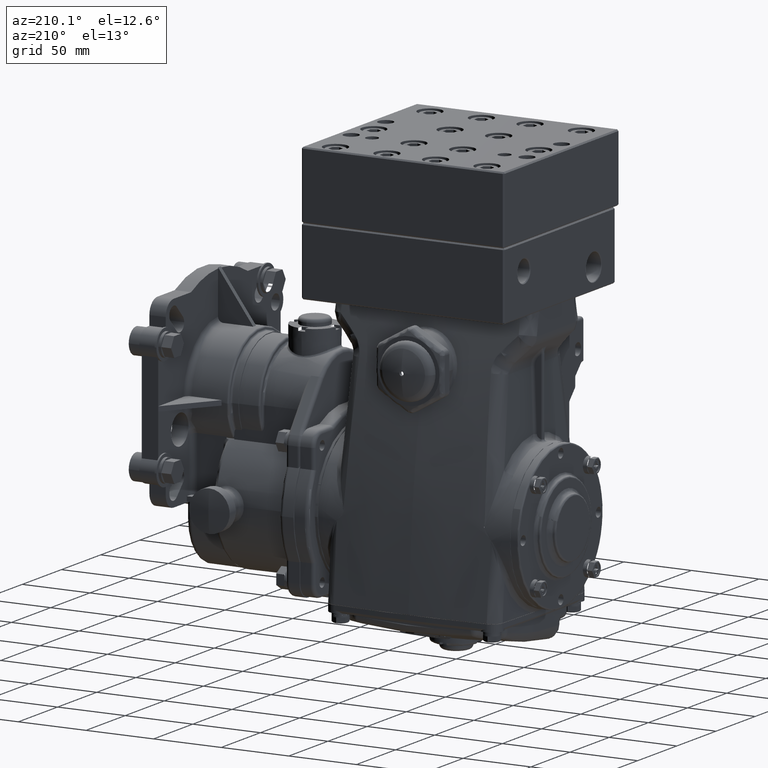
[diagram: clean part render]
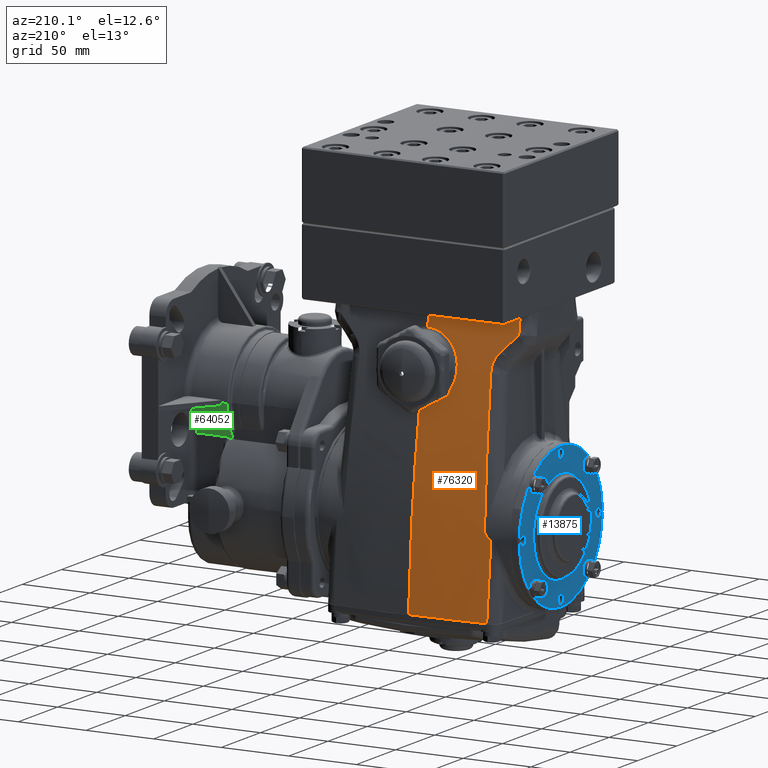
[diagram: same view with three faces highlighted in distinct colors, each labeled with its STEP entity id]
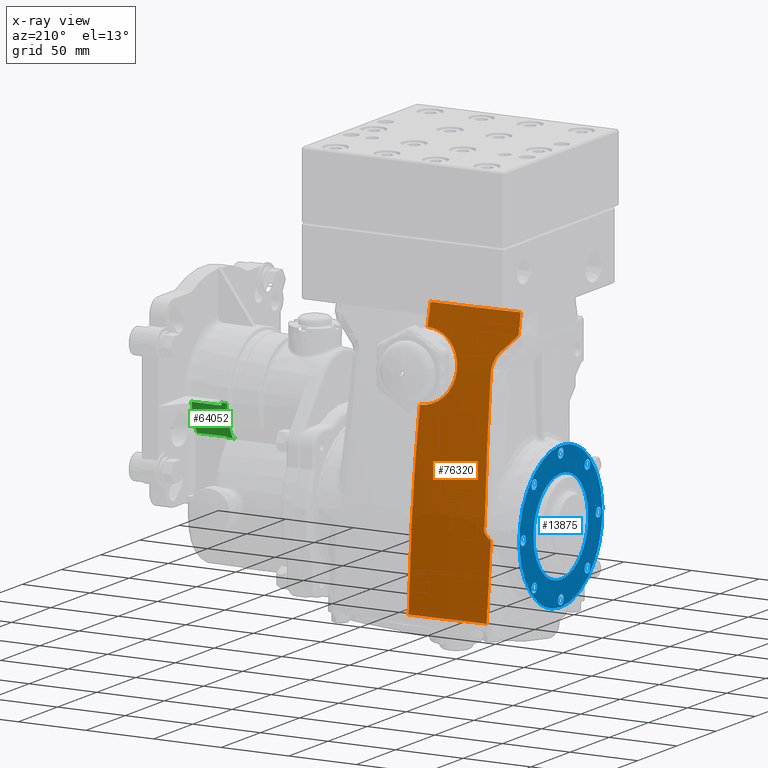
[diagram: x-ray of the same camera — body ghosted, the three highlighted faces saturated]
A machine part, auxiliary view with three faces highlighted in distinct colors.
The next image is the same camera in x-ray (body ghosted, the three faces saturated) — at least one of them is partly hidden behind the body in this view.
Their STEP definitions:

[orange] entity #76320 — the highlighted face is a freeform B-spline surface patch.
#261 = CARTESIAN_POINT ( 'NONE',  ( -1.946748905238079086, 1.528379903095722359, 4.378080018571826493 ) ) ;
#338 = CARTESIAN_POINT ( 'NONE',  ( 1.789341252083276768, 1.261249471572284842, 5.708661417322832499 ) ) ;
#791 = CARTESIAN_POINT ( 'NONE',  ( 2.686370785910835668, 2.084068835673689168, 0.4897784465330284331 ) ) ;
#1165 = CARTESIAN_POINT ( 'NONE',  ( -2.063488888649752440, 1.476050141854796216, 4.604872648964009052 ) ) ;
#1250 = CARTESIAN_POINT ( 'NONE',  ( 2.862114397419967649, 1.201536995417321174, 5.708661417322835163 ) ) ;
#1354 = B_SPLINE_CURVE_WITH_KNOTS ( 'NONE', 3,
 ( #4500, #25053, #67174, #54796, #53004, #68060 ),
 .UNSPECIFIED., .F., .F.,
 ( 4, 2, 4 ),
 ( 2.860979249076398407E-17, 0.0003987412940839052140, 0.0007974825881677818050 ),
 .UNSPECIFIED. ) ;
#1531 = CARTESIAN_POINT ( 'NONE',  ( -1.856596089375251557, 2.347836400576190474, -2.152851640792331267 ) ) ;
#2363 = CARTESIAN_POINT ( 'NONE',  ( -2.107178115646288763, 2.142550459315986089, 0.07382979369071028530 ) ) ;
#2602 = CARTESIAN_POINT ( 'NONE',  ( 2.913385826771654141, 2.265344068576858216, -2.165354330708661568 ) ) ;
#3323 = CARTESIAN_POINT ( 'NONE',  ( 4.913136071072523174E-16, 1.836057301759951743, 3.153322082173252383 ) ) ;
#3571 = CARTESIAN_POINT ( 'NONE',  ( -2.580420361868525525, 1.219814423293576366, 5.708661417322829834 ) ) ;
#3930 = ORIENTED_EDGE ( 'NONE', *, *, #60426, .F. ) ;
#4049 = CARTESIAN_POINT ( 'NONE',  ( -1.424768798695146943, 1.872199753906897080, 3.127925920230782530 ) ) ;
#4493 = CARTESIAN_POINT ( 'NONE',  ( -2.706392384829025666, 1.723957603235178659, 3.127925920230774093 ) ) ;
#4500 = CARTESIAN_POINT ( 'NONE',  ( -2.586362804630043755, 1.329823753665074770, 5.151270064738946886 ) ) ;
#4932 = CARTESIAN_POINT ( 'NONE',  ( -2.450684691601683340, 2.118214908375344319, 0.4897784465330273784 ) ) ;
#4938 = ORIENTED_EDGE ( 'NONE', *, *, #64940, .F. ) ;
#5289 = CARTESIAN_POINT ( 'NONE',  ( -0.4888797921504499655, 1.471286706367559649, 4.958214325787498211 ) ) ;
#5394 = CARTESIAN_POINT ( 'NONE',  ( -2.085131295870260804, 1.806265684984544873, 3.127925920230786083 ) ) ;
#5573 = CARTESIAN_POINT ( 'NONE',  ( -2.049718606573461166, 2.125365367588376575, 0.2902049147125475015 ) ) ;
#5842 = ORIENTED_EDGE ( 'NONE', *, *, #17566, .F. ) ;
#5848 = CARTESIAN_POINT ( 'NONE',  ( -1.741295670112191551, 1.263397575016612429, 5.708661417322822729 ) ) ;
#6195 = CARTESIAN_POINT ( 'NONE',  ( -0.9424672581809910854, 1.677446185038370174, 3.903529103138577483 ) ) ;
#6289 = CARTESIAN_POINT ( 'NONE',  ( 2.369125755900576280, 1.232386614232151567, 5.708661417322828946 ) ) ;
#6297 = CARTESIAN_POINT ( 'NONE',  ( -2.279618857958575884, 1.416278901517129540, 4.829451229673164647 ) ) ;
#6451 = CARTESIAN_POINT ( 'NONE',  ( -0.8019535934125048282, 1.292120820694525829, 5.708661417322820952 ) ) ;
#6526 = B_SPLINE_CURVE_WITH_KNOTS ( 'NONE', 3,
 ( #47432, #60677, #88576, #25871 ),
 .UNSPECIFIED., .F., .F.,
 ( 4, 4 ),
 ( 0.001088878662660275332, 0.05488596565795428317 ),
 .UNSPECIFIED. ) ;
#6650 = CARTESIAN_POINT ( 'NONE',  ( -0.8248358664637551740, 1.535056502061034944, 4.629367722570785659 ) ) ;
#6664 = CARTESIAN_POINT ( 'NONE',  ( -2.113476934372326976, 1.460827687103822603, 4.664159022983963787 ) ) ;
#6751 = CARTESIAN_POINT ( 'NONE',  ( 2.546430131488103932, 1.222062046991425621, 5.708661417322830722 ) ) ;
#7212 = CARTESIAN_POINT ( 'NONE',  ( 0.4731394191495172374, 2.398237061164405937, -2.165354330708661568 ) ) ;
#7668 = CARTESIAN_POINT ( 'NONE',  ( 2.855287436206074059, 1.701152819370444380, 3.127925920230767431 ) ) ;
#8051 = EDGE_LOOP ( 'NONE', ( #61357, #62368, #56733, #9690, #3930, #37534, #80258, #4938, #76538, #87794, #46072, #5842, #76854 ) ) ;
#8785 = CARTESIAN_POINT ( 'NONE',  ( -2.153604286739063234, 2.142677141121250184, 0.02739613417404300130 ) ) ;
#9315 = B_SPLINE_SURFACE_WITH_KNOTS ( 'NONE', 3, 3, ( 
 ( #87317, #66718, #60743, #74926 ),
 ( #46142, #31931, #45687, #80871 ),
 ( #24600, #39698, #4493, #61201 ),
 ( #81781, #4932, #40156, #74040 ),
 ( #75382, #25488, #19093, #10894 ),
 ( #59417, #17749, #5394, #11345 ),
 ( #33286, #38797, #89100, #32375 ),
 ( #46598, #74482, #60301, #5848 ),
 ( #26390, #54339, #4049, #88188 ),
 ( #19528, #40612, #11798, #68504 ),
 ( #59864, #87762, #25046, #13571 ),
 ( #14948, #70792, #33739, #76743 ),
 ( #34640, #41497, #28204, #26834 ),
 ( #27300, #27755, #14036, #75831 ),
 ( #77203, #42880, #62557, #89538 ),
 ( #55241, #84067, #54790, #56607 ),
 ( #7212, #13134, #62096, #84526 ),
 ( #35546, #49323, #69887, #48405 ),
 ( #76279, #35101, #20887, #48847 ),
 ( #82690, #34177, #41956, #89996 ),
 ( #61646, #63015, #83144, #338 ),
 ( #90450, #49779, #21811, #14501 ),
 ( #63465, #19981, #77650, #47959 ),
 ( #41050, #20431, #42426, #6289 ),
 ( #68959, #69416, #55693, #6751 ),
 ( #83605, #791, #56143, #28668 ),
 ( #21356, #70343, #7668, #1250 ),
 ( #2602, #16308, #79421, #57509 ) ),
 .UNSPECIFIED., .F., .F., .F.,
 ( 4, 1, 1, 1, 1, 1, 1, 1, 1, 1, 1, 3, 1, 1, 1, 1, 1, 1, 1, 1, 1, 1, 1, 4 ),
 ( 4, 4 ),
 ( 0.6820721574386665598, 0.6959246563835279620, 0.7035427212275893183, 0.7193976784518302248, 0.7310405802590583813, 0.7359332488469740863, 0.7508238822397268475, 0.7638475608825302521, 0.7796596398469348710, 0.7995163485322880348, 0.8173264764016470174, 0.8410360787193331689, 0.8577107850873244566, 0.8637457220820379256, 0.8805901526646464639, 0.9065920388027239873, 0.9224714650153007511, 0.9387315542144891722, 0.9421836685404010314, 0.9588536976265762402, 0.9664841599499356395, 0.9748837514135768600, 0.9901004416486960391, 1.000000000000000000 ),
 ( 0.000000000000000000, 1.000000000000000000 ),
 .UNSPECIFIED. ) ;
#9464 = CARTESIAN_POINT ( 'NONE',  ( 4.913136071072523174E-16, 1.836057301759951743, 3.153322082173252383 ) ) ;
#9648 = B_SPLINE_CURVE_WITH_KNOTS ( 'NONE', 3,
 ( #48319, #6664, #29039, #1165, #42335, #70706, #90366, #50136, #261, #78004, #35460, #64299, #77561, #48760 ),
 .UNSPECIFIED., .F., .F.,
 ( 4, 2, 2, 2, 2, 2, 4 ),
 ( 0.000000000000000000, 0.002006917460411370042, 0.004013834920822740085, 0.008027669841645474966, 0.01003458730205684588, 0.01204150476246821505, 0.01605533968329094993 ),
 .UNSPECIFIED. ) ;
#9690 = ORIENTED_EDGE ( 'NONE', *, *, #17899, .F. ) ;
#10551 = CARTESIAN_POINT ( 'NONE',  ( -2.040459019290786102, 2.135564256478422518, 0.2034737644382936528 ) ) ;
#10894 = CARTESIAN_POINT ( 'NONE',  ( -2.324091733874594556, 1.235065584125860205, 5.708661417322837828 ) ) ;
#11242 = CARTESIAN_POINT ( 'NONE',  ( -0.2689366647110956188, 1.827531859230574263, 3.191424109076885784 ) ) ;
#11345 = CARTESIAN_POINT ( 'NONE',  ( -2.132997294791504572, 1.245100427256950137, 5.708661417322847598 ) ) ;
#11515 = CARTESIAN_POINT ( 'NONE',  ( -2.053018764334045176, 2.123601462032806531, 0.3034926010330921686 ) ) ;
#11692 = CARTESIAN_POINT ( 'NONE',  ( -0.3151986056433642713, 1.455377961310617696, 5.039591650425437663 ) ) ;
#11798 = CARTESIAN_POINT ( 'NONE',  ( -1.120923444174019235, 1.894876309026148453, 3.127925920230774093 ) ) ;
#11803 = CARTESIAN_POINT ( 'NONE',  ( -2.427290454833202382, 1.376123305585299272, 4.976396351799645679 ) ) ;
#12118 = CARTESIAN_POINT ( 'NONE',  ( -0.9458950846975648918, 1.674355009619318269, 3.918891003596450151 ) ) ;
#12399 = CARTESIAN_POINT ( 'NONE',  ( -2.053194142686559864, 2.123507996596452063, 0.3041950259637326570 ) ) ;
#12581 = CARTESIAN_POINT ( 'NONE',  ( -0.08054166425364030213, 1.446093476583459436, 5.086882738810285964 ) ) ;
#13134 = CARTESIAN_POINT ( 'NONE',  ( 0.4802293617885408095, 2.293642939336617115, 0.4897784465330360937 ) ) ;
#13571 = CARTESIAN_POINT ( 'NONE',  ( -0.8019535934125048282, 1.292120820694525829, 5.708661417322820952 ) ) ;
#14036 = CARTESIAN_POINT ( 'NONE',  ( 2.319896085376018283E-17, 1.931427949591510762, 3.127925920230771872 ) ) ;
#14501 = CARTESIAN_POINT ( 'NONE',  ( 2.012704400865588106, 1.251118121441604725, 5.708661417322830722 ) ) ;
#14664 = CARTESIAN_POINT ( 'NONE',  ( -2.580420361868525525, 1.219814423293576366, 5.708661417322829834 ) ) ;
#14948 = CARTESIAN_POINT ( 'NONE',  ( -0.3931574066697886560, 2.399831511276485863, -2.165354330708661568 ) ) ;
#14976 = EDGE_CURVE ( 'NONE', #22379, #43972, #52198, .T. ) ;
#15176 = B_SPLINE_CURVE_WITH_KNOTS ( 'NONE', 3,
 ( #9464, #32277, #66163, #60199, #52899, #37373, #11242, #65286, #23622, #51553, #79436, #16755, #44690, #30934, #58860, #24063, #69318, #18543, #40046, #34080, #25834, #83045, #81219, #60643, #54689, #40949, #6195, #12118, #53786, #39605, #46949, #75272, #46493, #33636, #33181, #55141, #41397, #47857, #61550, #61997, #67951, #6650, #88542, #26285, #82587, #89445, #53336, #74381, #26733, #5289, #67502, #68862, #11692, #19878, #61098, #89000, #12581, #68409, #74832, #90350, #20337, #81675, #54240 ),
 .UNSPECIFIED., .F., .F.,
 ( 4, 2, 2, 2, 2, 2, 2, 2, 1, 2, 2, 2, 2, 2, 2, 2, 2, 2, 2, 2, 2, 2, 2, 2, 2, 2, 2, 2, 2, 2, 2, 4 ),
 ( 2.730194121708042440E-17, 0.004871676645388527474, 0.006089595806735652837, 0.007307514968082777333, 0.009743353290777015049, 0.01461502993616547660, 0.01583294909751258722, 0.01705086825885969784, 0.01948670658155391561, 0.02192254490424812990, 0.02435838322694234767, 0.02923005987233076933, 0.03166589819502496628, 0.03288381735637205955, 0.03410173651771915282, 0.03897341316310749815, 0.04019133232445456366, 0.04140925148580162224, 0.04384508980849572551, 0.04871676645388392513, 0.05115260477657801452, 0.05358844309927211086, 0.05602428142196620026, 0.05846011974466029659, 0.06333179639004848926, 0.06576763471274262030, 0.06820347303543673745, 0.07307514968082494400, 0.07551098800351904727, 0.07672890716486609197, 0.07733786674553962126, 0.07794682632621315055 ),
 .UNSPECIFIED. ) ;
#15625 = CARTESIAN_POINT ( 'NONE',  ( -2.077214970515645298, 2.141491778610241425, 0.1126631891245921807 ) ) ;
#15671 = CARTESIAN_POINT ( 'NONE',  ( -2.586362804630043755, 1.329823753665074770, 5.151270064738946886 ) ) ;
#16308 = CARTESIAN_POINT ( 'NONE',  ( 2.913385628152182161, 2.048762232609131040, 0.4897784465330273784 ) ) ;
#16755 = CARTESIAN_POINT ( 'NONE',  ( -0.5548157912006949077, 1.797392117569904579, 3.328526122958149536 ) ) ;
#17566 = EDGE_CURVE ( 'NONE', #43972, #31507, #65931, .T. ) ;
#17749 = CARTESIAN_POINT ( 'NONE',  ( -2.037265628463433398, 2.172062645620683519, 0.4897784465330372039 ) ) ;
#17899 = EDGE_CURVE ( 'NONE', #42642, #68042, #55994, .T. ) ;
#18543 = CARTESIAN_POINT ( 'NONE',  ( -0.7307716510373689633, 1.763420215501402044, 3.486847099895348912 ) ) ;
#19093 = CARTESIAN_POINT ( 'NONE',  ( -2.279253307875169998, 1.782954428840550332, 3.127925920230779422 ) ) ;
#19094 = CARTESIAN_POINT ( 'NONE',  ( 3.450959980213676461E-17, 1.299212598425197429, 5.708661417322835163 ) ) ;
#19102 = CARTESIAN_POINT ( 'NONE',  ( -2.244154975526539531, 2.140548279587432656, -0.04263853052005076028 ) ) ;
#19528 = CARTESIAN_POINT ( 'NONE',  ( -1.062078202322146669, 2.384053432892066837, -2.165354330708661568 ) ) ;
#19878 = CARTESIAN_POINT ( 'NONE',  ( -0.2544585553639734377, 1.451715161675748433, 5.058253401313940856 ) ) ;
#19981 = CARTESIAN_POINT ( 'NONE',  ( 2.083726086542775580, 2.166614530041778952, 0.4897784465330300985 ) ) ;
#20174 = CARTESIAN_POINT ( 'NONE',  ( -1.274984242628392523E-15, 1.445461229294053629, 5.090103064882366191 ) ) ;
#20337 = CARTESIAN_POINT ( 'NONE',  ( -0.01614265106011293638, 1.445481042056540266, 5.090002092305165426 ) ) ;
#20431 = CARTESIAN_POINT ( 'NONE',  ( 2.283695148368128258, 2.140796000541696831, 0.4897784465330257131 ) ) ;
#20607 = CARTESIAN_POINT ( 'NONE',  ( -2.975520256783599425E-07, 1.299212598425199872, 5.708661417322837828 ) ) ;
#20887 = CARTESIAN_POINT ( 'NONE',  ( 1.161614335099249162, 1.892574789840504090, 3.127925920230731460 ) ) ;
#21356 = CARTESIAN_POINT ( 'NONE',  ( 2.841633460699813707, 2.272069094341538253, -2.165354330708661568 ) ) ;
#21713 = CARTESIAN_POINT ( 'NONE',  ( -2.131860052545362816, 1.455898494205196236, 4.682448122466263740 ) ) ;
#21811 = CARTESIAN_POINT ( 'NONE',  ( 1.964095400574084938, 1.820132787096657490, 3.127925920230765211 ) ) ;
#22075 = B_SPLINE_CURVE_WITH_KNOTS ( 'NONE', 3,
 ( #46604, #11803, #6297, #67611 ),
 .UNSPECIFIED., .F., .F.,
 ( 4, 4 ),
 ( 0.000000000000000000, 0.01616665010958682341 ),
 .UNSPECIFIED. ) ;
#22095 = CARTESIAN_POINT ( 'NONE',  ( -1.485659127593189188, 2.367827536078678907, -2.152937399985699773 ) ) ;
#22379 = VERTEX_POINT ( 'NONE', #47014 ) ;
#22420 = CARTESIAN_POINT ( 'NONE',  ( -2.132997294791504572, 1.245100427256950137, 5.708661417322847598 ) ) ;
#22949 = VERTEX_POINT ( 'NONE', #25750 ) ;
#23622 = CARTESIAN_POINT ( 'NONE',  ( -0.3449787976630956932, 1.821950353961406366, 3.216540131001417890 ) ) ;
#24063 = CARTESIAN_POINT ( 'NONE',  ( -0.6422591814072775573, 1.782550782372620102, 3.397208525460236661 ) ) ;
#24600 = CARTESIAN_POINT ( 'NONE',  ( -2.663295530942336509, 2.288034568519320633, -2.165354330708661568 ) ) ;
#25046 = CARTESIAN_POINT ( 'NONE',  ( -0.7853088048963535739, 1.913828282296075267, 3.127925920230765211 ) ) ;
#25047 = CARTESIAN_POINT ( 'NONE',  ( -1.274984242628392523E-15, 1.445461229294053629, 5.090103064882366191 ) ) ;
#25053 = CARTESIAN_POINT ( 'NONE',  ( -2.586414031944188618, 1.330825853974931805, 5.146055892413254007 ) ) ;
#25092 = CARTESIAN_POINT ( 'NONE',  ( -3.553331779381568324E-16, 2.401107312964255058, -2.153091527327260835 ) ) ;
#25488 = CARTESIAN_POINT ( 'NONE',  ( -2.234415192802543526, 2.147607685230850105, 0.4897784465330339287 ) ) ;
#25750 = CARTESIAN_POINT ( 'NONE',  ( -2.580420361868525525, 1.219814423293576366, 5.708661417322829834 ) ) ;
#25834 = CARTESIAN_POINT ( 'NONE',  ( -0.8416776436527462213, 1.731100539559013107, 3.640799853198356750 ) ) ;
#25871 = CARTESIAN_POINT ( 'NONE',  ( -2.227242516835840735, 2.321209563805544995, -2.152759186897168053 ) ) ;
#26285 = CARTESIAN_POINT ( 'NONE',  ( -0.7716760308857145700, 1.520005616499535250, 4.707190689330423616 ) ) ;
#26390 = CARTESIAN_POINT ( 'NONE',  ( -1.345329668388619115, 2.372960332906649317, -2.165354330708661568 ) ) ;
#26556 = CARTESIAN_POINT ( 'NONE',  ( -2.047901024090823530, 2.126340813064907742, 0.2828387324246880996 ) ) ;
#26733 = CARTESIAN_POINT ( 'NONE',  ( -0.5160278655444371365, 1.474502422586200012, 4.941722194200439233 ) ) ;
#26834 = CARTESIAN_POINT ( 'NONE',  ( -0.1449627675236095370, 1.299212598425194765, 5.708661417322837828 ) ) ;
#27300 = CARTESIAN_POINT ( 'NONE',  ( 7.936972221735040067E-07, 2.401574803149599369, -2.165354330708661568 ) ) ;
#27462 = CARTESIAN_POINT ( 'NONE',  ( 3.450959980213676461E-17, 1.299212598425197429, 5.708661417322835163 ) ) ;
#27755 = CARTESIAN_POINT ( 'NONE',  ( 1.163670133464663677E-17, 2.300768595909193692, 0.4897784465330312087 ) ) ;
#28204 = CARTESIAN_POINT ( 'NONE',  ( -0.1449928827331220249, 1.931427949591510762, 3.127925920230771872 ) ) ;
#28668 = CARTESIAN_POINT ( 'NONE',  ( 2.729947521028391666, 1.210496205736397046, 5.708661417322837828 ) ) ;
#29039 = CARTESIAN_POINT ( 'NONE',  ( -2.096129776760800034, 1.465843969454385887, 4.644982890269668374 ) ) ;
#30244 = CARTESIAN_POINT ( 'NONE',  ( -2.244154975526539531, 2.140548279587432656, -0.04263853052005076028 ) ) ;
#30934 = CARTESIAN_POINT ( 'NONE',  ( -0.5933181033504502100, 1.791224152829905769, 3.356988519879162247 ) ) ;
#31507 = VERTEX_POINT ( 'NONE', #37312 ) ;
#31666 = CARTESIAN_POINT ( 'NONE',  ( 3.450959980213676461E-17, 1.299212598425197429, 5.708661417322835163 ) ) ;
#31931 = CARTESIAN_POINT ( 'NONE',  ( -2.822533585408712575, 2.063108027997046179, 0.4897784465330322634 ) ) ;
#32277 = CARTESIAN_POINT ( 'NONE',  ( -0.06459929520378429602, 1.836057302116698819, 3.153322082174859542 ) ) ;
#32375 = CARTESIAN_POINT ( 'NONE',  ( -1.943646624093668951, 1.254362676313996783, 5.708661417322836940 ) ) ;
#32376 = CARTESIAN_POINT ( 'NONE',  ( -1.384850827037492099E-08, 1.349635227852899577, 5.502833657239617260 ) ) ;
#33181 = CARTESIAN_POINT ( 'NONE',  ( -0.9599596636209278833, 1.609408501972310779, 4.246538372213343848 ) ) ;
#33286 = CARTESIAN_POINT ( 'NONE',  ( -1.798349607840920461, 2.349958156103974627, -2.165354330708661568 ) ) ;
#33636 = CARTESIAN_POINT ( 'NONE',  ( -0.9644831214159411692, 1.618667759299428743, 4.199342229287560180 ) ) ;
#33739 = CARTESIAN_POINT ( 'NONE',  ( -0.4014957656440674150, 1.927885586440226895, 3.127925920230758550 ) ) ;
#34080 = CARTESIAN_POINT ( 'NONE',  ( -0.7895195932548942919, 1.747619812788680616, 3.561772888436794737 ) ) ;
#34177 = CARTESIAN_POINT ( 'NONE',  ( 1.480950586178896522, 2.231805334558643494, 0.4897784465330393688 ) ) ;
#34640 = CARTESIAN_POINT ( 'NONE',  ( -0.1450532115828242763, 2.401574803149599369, -2.165354330708661568 ) ) ;
#35101 = CARTESIAN_POINT ( 'NONE',  ( 1.130488594888032106, 2.260970933480409784, 0.4897784465330104475 ) ) ;
#35460 = CARTESIAN_POINT ( 'NONE',  ( -1.927611122228681584, 1.544016712790777790, 4.303500443620481342 ) ) ;
#35546 = CARTESIAN_POINT ( 'NONE',  ( 0.7593239362273205284, 2.393134938270125467, -2.165354330708661568 ) ) ;
#35956 = EDGE_CURVE ( 'NONE', #88088, #43592, #49369, .T. ) ;
#36676 = CARTESIAN_POINT ( 'NONE',  ( -2.190893994370604059, 2.142160377084881606, -0.004468358595178296803 ) ) ;
#37312 = CARTESIAN_POINT ( 'NONE',  ( 4.913136071072523174E-16, 1.836057301759951743, 3.153322082173252383 ) ) ;
#37373 = CARTESIAN_POINT ( 'NONE',  ( -0.2533926817482556326, 1.828505556673673649, 3.187054628844162352 ) ) ;
#37534 = ORIENTED_EDGE ( 'NONE', *, *, #89852, .F. ) ;
#37908 = EDGE_CURVE ( 'NONE', #67301, #22379, #6526, .T. ) ;
#38439 = EDGE_CURVE ( 'NONE', #68042, #64361, #66585, .T. ) ;
#38452 = CARTESIAN_POINT ( 'NONE',  ( -2.043608718765486110, 2.136991848240979763, 0.1870679647836677173 ) ) ;
#38797 = CARTESIAN_POINT ( 'NONE',  ( -1.846782245487677443, 2.194251839819490346, 0.4897784465330333736 ) ) ;
#38972 = CARTESIAN_POINT ( 'NONE',  ( -2.050696319507216092, 2.124840656513260484, 0.2941673272930124816 ) ) ;
#39422 = CARTESIAN_POINT ( 'NONE',  ( -2.051680137896833678, 2.124314930510386557, 0.2981281011033421469 ) ) ;
#39605 = CARTESIAN_POINT ( 'NONE',  ( -0.9672713820068505886, 1.646538536074291237, 4.058006522140317429 ) ) ;
#39698 = CARTESIAN_POINT ( 'NONE',  ( -2.684844189044222063, 2.084204787240034662, 0.4897784465330306536 ) ) ;
#40046 = CARTESIAN_POINT ( 'NONE',  ( -0.7706295694341124269, 1.753039094228238559, 3.535988971856116603 ) ) ;
#40156 = CARTESIAN_POINT ( 'NONE',  ( -2.487087237515690497, 1.755350102494653619, 3.127925920230767431 ) ) ;
#40612 = CARTESIAN_POINT ( 'NONE',  ( -1.091501189288772045, 2.263308735351807321, 0.4897784465330322634 ) ) ;
#40949 = CARTESIAN_POINT ( 'NONE',  ( -0.9348349137624539784, 1.683629070884895773, 3.872875714643420064 ) ) ;
#41050 = CARTESIAN_POINT ( 'NONE',  ( 2.240980235268052567, 2.321187910974375601, -2.165354330708661568 ) ) ;
#41190 = B_SPLINE_CURVE_WITH_KNOTS ( 'NONE', 3,
 ( #14664, #77806, #55855, #76901, #22420, #63176, #77358, #48561, #49489, #6451, #90166, #42593, #83767, #20607, #84688, #27462 ),
 .UNSPECIFIED., .F., .F.,
 ( 4, 1, 1, 1, 1, 1, 1, 1, 1, 1, 3, 4 ),
 ( 0.06520171273649551236, 0.06753282007624346328, 0.1174024920637856823, 0.1540237005538281356, 0.1694129428060909270, 0.2162494616614028531, 0.2572137211546264846, 0.3069485252441864209, 0.3694051774372769659, 0.4254245802233757034, 0.4999999999999931721, 0.5000000764014950194 ),
 .UNSPECIFIED. ) ;
#41397 = CARTESIAN_POINT ( 'NONE',  ( -0.9374267225573131856, 1.585341853739806961, 4.369806067430779706 ) ) ;
#41497 = CARTESIAN_POINT ( 'NONE',  ( -0.1450234440065842345, 2.300768595909193692, 0.4897784465330312087 ) ) ;
#41956 = CARTESIAN_POINT ( 'NONE',  ( 1.523571933390364785, 1.864023738764600591, 3.127925920230789192 ) ) ;
#42250 = CARTESIAN_POINT ( 'NONE',  ( -3.553331779381568324E-16, 2.401107312964255058, -2.153091527327260835 ) ) ;
#42276 = VERTEX_POINT ( 'NONE', #60585 ) ;
#42335 = CARTESIAN_POINT ( 'NONE',  ( -2.048227176215684064, 1.481234032319028726, 4.583956750178723283 ) ) ;
#42426 = CARTESIAN_POINT ( 'NONE',  ( 2.326410604817633843, 1.776570720899578237, 3.127925920230762991 ) ) ;
#42593 = CARTESIAN_POINT ( 'NONE',  ( -0.1449627675236095370, 1.299212598425194765, 5.708661417322837828 ) ) ;
#42642 = VERTEX_POINT ( 'NONE', #89181 ) ;
#42880 = CARTESIAN_POINT ( 'NONE',  ( 0.1019934165441797602, 2.300768595909193692, 0.4897784465330312087 ) ) ;
#43551 = CARTESIAN_POINT ( 'NONE',  ( -2.118289369877802031, 2.142698611774983775, 0.06166686124301477140 ) ) ;
#43592 = VERTEX_POINT ( 'NONE', #31666 ) ;
#43972 = VERTEX_POINT ( 'NONE', #25092 ) ;
#44436 = CARTESIAN_POINT ( 'NONE',  ( -2.040573113143061779, 2.130372523749103575, 0.2520858116330775278 ) ) ;
#44690 = CARTESIAN_POINT ( 'NONE',  ( -0.5678631274822997232, 1.795369591084004401, 3.337844157325742245 ) ) ;
#44764 = CARTESIAN_POINT ( 'NONE',  ( -2.582554775073421904, 1.257421124533808054, 5.523052829341247971 ) ) ;
#45687 = CARTESIAN_POINT ( 'NONE',  ( -2.832087334218518215, 1.704813401921131399, 3.127925920230778090 ) ) ;
#46072 = ORIENTED_EDGE ( 'NONE', *, *, #72988, .F. ) ;
#46142 = CARTESIAN_POINT ( 'NONE',  ( -2.812979403157050307, 2.274754709963536570, -2.165354330708661568 ) ) ;
#46493 = CARTESIAN_POINT ( 'NONE',  ( -0.9656080779111774204, 1.621775079081216209, 4.183527801579445260 ) ) ;
#46598 = CARTESIAN_POINT ( 'NONE',  ( -1.602354164347862486, 2.360792373919399001, -2.165354330708661568 ) ) ;
#46604 = CARTESIAN_POINT ( 'NONE',  ( -2.574974328991057604, 1.336104400314134022, 5.123366273300666407 ) ) ;
#46949 = CARTESIAN_POINT ( 'NONE',  ( -0.9674257110944358695, 1.631065580829812012, 4.136350087504879980 ) ) ;
#47014 = CARTESIAN_POINT ( 'NONE',  ( -2.227242516835840735, 2.321209563805544995, -2.152759186897168053 ) ) ;
#47432 = CARTESIAN_POINT ( 'NONE',  ( -2.244154975526539531, 2.140548279587432656, -0.04263853052005076028 ) ) ;
#47857 = CARTESIAN_POINT ( 'NONE',  ( -0.9195789750301706089, 1.573690374301592865, 4.429810660793451760 ) ) ;
#47959 = CARTESIAN_POINT ( 'NONE',  ( 2.179242577519465929, 1.242815352902282511, 5.708661417322839604 ) ) ;
#48319 = CARTESIAN_POINT ( 'NONE',  ( -2.131860052545362816, 1.455898494205196236, 4.682448122466263740 ) ) ;
#48405 = CARTESIAN_POINT ( 'NONE',  ( 0.8095103919857050689, 1.292140362101252382, 5.708661417322824505 ) ) ;
#48561 = CARTESIAN_POINT ( 'NONE',  ( -1.464488406949919552, 1.274012937168632842, 5.708661417322844933 ) ) ;
#48760 = CARTESIAN_POINT ( 'NONE',  ( -1.913792689305000794, 1.578652126433170100, 4.124995731966824231 ) ) ;
#48814 = VERTEX_POINT ( 'NONE', #15671 ) ;
#48847 = CARTESIAN_POINT ( 'NONE',  ( 1.192739666030848023, 1.282981708238517982, 5.708661417322778320 ) ) ;
#49323 = CARTESIAN_POINT ( 'NONE',  ( 0.7760523888099779555, 2.282663781206291986, 0.4897784465330268233 ) ) ;
#49369 = B_SPLINE_CURVE_WITH_KNOTS ( 'NONE', 3,
 ( #25047, #52997, #32376, #19094 ),
 .UNSPECIFIED., .F., .F.,
 ( 4, 4 ),
 ( 0.1860543191475172720, 0.2021863343224881704 ),
 .UNSPECIFIED. ) ;
#49489 = CARTESIAN_POINT ( 'NONE',  ( -1.150346110494637530, 1.283976514928851342, 5.708661417322833387 ) ) ;
#49779 = CARTESIAN_POINT ( 'NONE',  ( 1.915486056463422626, 2.186527716124472054, 0.4897784465330268233 ) ) ;
#50136 = CARTESIAN_POINT ( 'NONE',  ( -1.954921401464340347, 1.523061787492009378, 4.402702356222214064 ) ) ;
#50869 = CARTESIAN_POINT ( 'NONE',  ( -2.044355463987427957, 2.128279285250508579, 0.2680828113186349282 ) ) ;
#51553 = CARTESIAN_POINT ( 'NONE',  ( -0.4328265377979031991, 1.813782680613042597, 3.253492456797082877 ) ) ;
#52198 = B_SPLINE_CURVE_WITH_KNOTS ( 'NONE', 3,
 ( #84803, #1531, #22095, #84358, #78372, #42250 ),
 .UNSPECIFIED., .F., .F.,
 ( 4, 2, 4 ),
 ( 2.221529986854170653E-16, 0.02830497638067613203, 0.05660995276135205589 ),
 .UNSPECIFIED. ) ;
#52661 = CARTESIAN_POINT ( 'NONE',  ( -2.060662642086692475, 2.140149228468939402, 0.1411380803277903495 ) ) ;
#52726 = CARTESIAN_POINT ( 'NONE',  ( -2.046101504699353146, 2.127312986832227359, 0.2754674812947193741 ) ) ;
#52899 = CARTESIAN_POINT ( 'NONE',  ( -0.2222672595200096413, 1.830271744323471061, 3.179138551028550363 ) ) ;
#52997 = CARTESIAN_POINT ( 'NONE',  ( 1.889681467910129429E-08, 1.398385728573260156, 5.296640703349395629 ) ) ;
#53004 = CARTESIAN_POINT ( 'NONE',  ( -2.578671170726355211, 1.335102641929536871, 5.127045243281220799 ) ) ;
#53336 = CARTESIAN_POINT ( 'NONE',  ( -0.6433779996093795805, 1.492703628457151543, 4.848150405952392994 ) ) ;
#53639 = CARTESIAN_POINT ( 'NONE',  ( 3.593409488120000932E-16, 2.367043445073854002, -1.263200589613154179 ) ) ;
#53786 = CARTESIAN_POINT ( 'NONE',  ( -0.9611287857313427496, 1.658899699653148208, 3.995873098052596717 ) ) ;
#54065 = CARTESIAN_POINT ( 'NONE',  ( -2.052668002272747927, 2.123788338986134505, 0.3020877454172159471 ) ) ;
#54240 = CARTESIAN_POINT ( 'NONE',  ( -1.274984242628392523E-15, 1.445461229294053629, 5.090103064882366191 ) ) ;
#54339 = CARTESIAN_POINT ( 'NONE',  ( -1.385049581091533977, 2.240167768303182871, 0.4897784465330360937 ) ) ;
#54689 = CARTESIAN_POINT ( 'NONE',  ( -0.9306256475736153222, 1.686722155919021304, 3.857577703846204020 ) ) ;
#54790 = CARTESIAN_POINT ( 'NONE',  ( 0.2418360551790639801, 1.930064199602339103, 3.127925920230777201 ) ) ;
#54796 = CARTESIAN_POINT ( 'NONE',  ( -2.581547405182520460, 1.334037875565112996, 5.131388924344277847 ) ) ;
#55141 = CARTESIAN_POINT ( 'NONE',  ( -0.9554301720631646067, 1.603327808052289916, 4.277628539086540727 ) ) ;
#55241 = CARTESIAN_POINT ( 'NONE',  ( 0.2386529819870307489, 2.400899943846330320, -2.165354330708661568 ) ) ;
#55693 = CARTESIAN_POINT ( 'NONE',  ( 2.511391663655022644, 1.752002329188374841, 3.127925920230763879 ) ) ;
#55855 = CARTESIAN_POINT ( 'NONE',  ( -2.484440817764909770, 1.225721470078472430, 5.708661417322824505 ) ) ;
#55994 = B_SPLINE_CURVE_WITH_KNOTS ( 'NONE', 3,
 ( #79610, #87399, #86945, #87845, #88277, #88739 ),
 .UNSPECIFIED., .F., .F.,
 ( 4, 2, 4 ),
 ( 0.000000000000000000, 0.04904723555558240800, 0.09809447111116481599 ),
 .UNSPECIFIED. ) ;
#56143 = CARTESIAN_POINT ( 'NONE',  ( 2.708159283295305642, 1.723791484228667459, 3.127925920230769652 ) ) ;
#56607 = CARTESIAN_POINT ( 'NONE',  ( 0.2434275427088355981, 1.298707510032789170, 5.708661417322846710 ) ) ;
#56733 = ORIENTED_EDGE ( 'NONE', *, *, #38439, .F. ) ;
#57509 = CARTESIAN_POINT ( 'NONE',  ( 2.913385826771653697, 1.197969208711458622, 5.708661417322836940 ) ) ;
#58860 = CARTESIAN_POINT ( 'NONE',  ( -0.6057620011881449384, 1.789096022879973713, 3.366838808613132006 ) ) ;
#59417 = CARTESIAN_POINT ( 'NONE',  ( -1.989399371181384657, 2.338284998638617829, -2.165354330708661568 ) ) ;
#59598 = CARTESIAN_POINT ( 'NONE',  ( -9.459155955198532228E-16, 2.302870744067759379, -0.3757870823018082396 ) ) ;
#59864 = CARTESIAN_POINT ( 'NONE',  ( -0.7520193225572913143, 2.393118508680718737, -2.165354330708661568 ) ) ;
#60199 = CARTESIAN_POINT ( 'NONE',  ( -0.2066455304282947270, 1.831067194595412229, 3.175578635901489921 ) ) ;
#60301 = CARTESIAN_POINT ( 'NONE',  ( -1.694981807724714296, 1.848142482010741716, 3.127925920230768320 ) ) ;
#60426 = EDGE_CURVE ( 'NONE', #73113, #42642, #9648, .T. ) ;
#60585 = CARTESIAN_POINT ( 'NONE',  ( -2.574974328991057604, 1.336104400314134022, 5.123366273300666407 ) ) ;
#60595 = CARTESIAN_POINT ( 'NONE',  ( -2.044355463987427957, 2.128279285250508579, 0.2680828113186349282 ) ) ;
#60643 = CARTESIAN_POINT ( 'NONE',  ( -0.9169727454114502407, 1.695898520020459488, 3.812303417004026418 ) ) ;
#60677 = CARTESIAN_POINT ( 'NONE',  ( -2.239546380805880421, 2.213566551445498298, -0.7448622437288107134 ) ) ;
#60743 = CARTESIAN_POINT ( 'NONE',  ( -2.913385809642305091, 1.691985680221154587, 3.127925920230778090 ) ) ;
#60938 = CARTESIAN_POINT ( 'NONE',  ( -8.016133500422119341E-17, 2.106884914907209971, 1.393649014934724262 ) ) ;
#61098 = CARTESIAN_POINT ( 'NONE',  ( -0.1605620357445409208, 1.447988655397608238, 5.077233423560208792 ) ) ;
#61201 = CARTESIAN_POINT ( 'NONE',  ( -2.727940840439588843, 1.210589729325569186, 5.708661417322829834 ) ) ;
#61357 = ORIENTED_EDGE ( 'NONE', *, *, #37908, .F. ) ;
#61550 = CARTESIAN_POINT ( 'NONE',  ( -0.8837879089344029548, 1.556684492105498752, 4.517574585329223957 ) ) ;
#61646 = CARTESIAN_POINT ( 'NONE',  ( 1.648708095812247088, 2.358238290425401562, -2.165354330708661568 ) ) ;
#61997 = CARTESIAN_POINT ( 'NONE',  ( -0.8703003494871580648, 1.551087081194280515, 4.546494005402067273 ) ) ;
#62096 = CARTESIAN_POINT ( 'NONE',  ( 0.4873200862093256536, 1.924545779200155238, 3.127925920230781642 ) ) ;
#62368 = ORIENTED_EDGE ( 'NONE', *, *, #68844, .F. ) ;
#62557 = CARTESIAN_POINT ( 'NONE',  ( 0.1019719231317473968, 1.931427949591510762, 3.127925920230771872 ) ) ;
#63015 = CARTESIAN_POINT ( 'NONE',  ( 1.695585503688044504, 2.210467917730762899, 0.4897784465330279335 ) ) ;
#63176 = CARTESIAN_POINT ( 'NONE',  ( -1.943646624093668951, 1.254362676313996783, 5.708661417322836940 ) ) ;
#63465 = CARTESIAN_POINT ( 'NONE',  ( 2.035968259211032638, 2.335433637454252143, -2.165354330708661568 ) ) ;
#64299 = CARTESIAN_POINT ( 'NONE',  ( -1.914997405245973727, 1.559272713065359195, 4.227973954623275965 ) ) ;
#64361 = VERTEX_POINT ( 'NONE', #60595 ) ;
#64593 = CARTESIAN_POINT ( 'NONE',  ( -2.217111855764112516, 2.141468998871418616, -0.02405646177959932033 ) ) ;
#64940 = EDGE_CURVE ( 'NONE', #22949, #48814, #75379, .T. ) ;
#65030 = CARTESIAN_POINT ( 'NONE',  ( -2.053717711146645808, 2.139269078108409605, 0.1560372837815808822 ) ) ;
#65286 = CARTESIAN_POINT ( 'NONE',  ( -0.3149968055351913820, 1.824372806192153140, 3.205623488492979067 ) ) ;
#65931 = B_SPLINE_CURVE_WITH_KNOTS ( 'NONE', 3,
 ( #66459, #53639, #59598, #80163, #60938, #88380, #67790, #3323 ),
 .UNSPECIFIED., .F., .F.,
 ( 4, 2, 2, 4 ),
 ( 0.0003113998746300996462, 0.06810555726670124155, 0.1020026359627368012, 0.1358997146587723748 ),
 .UNSPECIFIED. ) ;
#66163 = CARTESIAN_POINT ( 'NONE',  ( -0.1282450143015183286, 1.834608345002694874, 3.159747366912884381 ) ) ;
#66459 = CARTESIAN_POINT ( 'NONE',  ( -3.553331779381568324E-16, 2.401107312964255058, -2.153091527327260835 ) ) ;
#66585 = B_SPLINE_CURVE_WITH_KNOTS ( 'NONE', 3,
 ( #12399, #11515, #87476, #54065, #39422, #38972, #5573, #26556, #52726, #67337 ),
 .UNSPECIFIED., .F., .F.,
 ( 4, 3, 3, 4 ),
 ( -5.562569102119109104E-05, 0.000000000000000000, 0.0003135512665637998626, 0.0008964518825718759739 ),
 .UNSPECIFIED. ) ;
#66718 = CARTESIAN_POINT ( 'NONE',  ( -2.913386025391125234, 2.048762232609160794, 0.4897784465330322634 ) ) ;
#67166 = FACE_OUTER_BOUND ( 'NONE', #8051, .T. ) ;
#67174 = CARTESIAN_POINT ( 'NONE',  ( -2.585440017282558234, 1.331886858991679468, 5.140951107667772746 ) ) ;
#67301 = VERTEX_POINT ( 'NONE', #19102 ) ;
#67337 = CARTESIAN_POINT ( 'NONE',  ( -2.044355463987427957, 2.128279285250508579, 0.2680828113186349282 ) ) ;
#67502 = CARTESIAN_POINT ( 'NONE',  ( -0.4326564059834072662, 1.465345589794402548, 4.988646893029095253 ) ) ;
#67611 = CARTESIAN_POINT ( 'NONE',  ( -2.131860052545362816, 1.455898494205196236, 4.682448122466263740 ) ) ;
#67790 = CARTESIAN_POINT ( 'NONE',  ( -4.466146051079346438E-16, 1.913088131938618153, 2.714857836103527600 ) ) ;
#67951 = CARTESIAN_POINT ( 'NONE',  ( -0.8408534539225611670, 1.540288871572165430, 4.602309156754099462 ) ) ;
#68042 = VERTEX_POINT ( 'NONE', #68083 ) ;
#68060 = CARTESIAN_POINT ( 'NONE',  ( -2.574974328991057604, 1.336104400314134022, 5.123366273300666407 ) ) ;
#68083 = CARTESIAN_POINT ( 'NONE',  ( -2.053194142686559864, 2.123507996596452063, 0.3041950259637326570 ) ) ;
#68409 = CARTESIAN_POINT ( 'NONE',  ( -0.06446866798773860652, 1.445856567849097107, 5.088089217278129794 ) ) ;
#68504 = CARTESIAN_POINT ( 'NONE',  ( -1.150346110494637530, 1.283976514928851342, 5.708661417322833387 ) ) ;
#68844 = EDGE_CURVE ( 'NONE', #64361, #67301, #81314, .T. ) ;
#68862 = CARTESIAN_POINT ( 'NONE',  ( -0.4035240144287274289, 1.462619888851461214, 5.002588478119781357 ) ) ;
#68959 = CARTESIAN_POINT ( 'NONE',  ( 2.441314665332591005, 2.306279735125305486, -2.165354330708661568 ) ) ;
#69318 = CARTESIAN_POINT ( 'NONE',  ( -0.6887007126048577677, 1.773395714737922901, 3.439881183082051042 ) ) ;
#69416 = CARTESIAN_POINT ( 'NONE',  ( 2.476352911878936691, 2.114609130722263863, 0.4897784465330257131 ) ) ;
#69887 = CARTESIAN_POINT ( 'NONE',  ( 0.7927816049644650365, 1.913850617605289184, 3.127925920230762991 ) ) ;
#70343 = CARTESIAN_POINT ( 'NONE',  ( 2.848460234453425777, 2.059014184365152378, 0.4897784465330273784 ) ) ;
#70706 = CARTESIAN_POINT ( 'NONE',  ( -2.006197590821474641, 1.496792152695942901, 4.519617041527910217 ) ) ;
#70792 = CARTESIAN_POINT ( 'NONE',  ( -0.3973269798802252506, 2.297068369690827616, 0.4897784465330241033 ) ) ;
#71470 = CARTESIAN_POINT ( 'NONE',  ( -2.141518609228189707, 2.142761626880099524, 0.03843709217641020498 ) ) ;
#72671 = CARTESIAN_POINT ( 'NONE',  ( -2.584535606851970702, 1.294080410689277816, 5.337251396087705935 ) ) ;
#72988 = EDGE_CURVE ( 'NONE', #31507, #88088, #15176, .T. ) ;
#73113 = VERTEX_POINT ( 'NONE', #21713 ) ;
#73244 = CARTESIAN_POINT ( 'NONE',  ( -2.038984479122262883, 2.132266257378623298, 0.2358320036178835899 ) ) ;
#74040 = CARTESIAN_POINT ( 'NONE',  ( -2.523490070267365493, 1.223445930611731125, 5.708661417322820064 ) ) ;
#74381 = CARTESIAN_POINT ( 'NONE',  ( -0.5946663609481602775, 1.484859650876335424, 4.888530248302501491 ) ) ;
#74467 = EDGE_CURVE ( 'NONE', #22949, #43592, #41190, .T. ) ;
#74482 = CARTESIAN_POINT ( 'NONE',  ( -1.648668314213691533, 2.215500870424783830, 0.4897784465330284331 ) ) ;
#74832 = CARTESIAN_POINT ( 'NONE',  ( -0.04032141249026679336, 1.445619475605324000, 5.089296836793732126 ) ) ;
#74926 = CARTESIAN_POINT ( 'NONE',  ( -2.913385826771655474, 1.197969208711458622, 5.708661417322835163 ) ) ;
#75272 = CARTESIAN_POINT ( 'NONE',  ( -0.9670770789927330968, 1.627969835512179664, 4.152052922981182448 ) ) ;
#75379 = B_SPLINE_CURVE_WITH_KNOTS ( 'NONE', 3,
 ( #3571, #44764, #72671, #85166 ),
 .UNSPECIFIED., .F., .F.,
 ( 4, 4 ),
 ( -5.999999999966940033E-08, 0.01443155766111012782 ),
 .UNSPECIFIED. ) ;
#75382 = CARTESIAN_POINT ( 'NONE',  ( -2.189576524486965603, 2.325080261920541513, -2.165354330708661568 ) ) ;
#75831 = CARTESIAN_POINT ( 'NONE',  ( -4.460639496743511363E-07, 1.299212598425199872, 5.708661417322837828 ) ) ;
#76279 = CARTESIAN_POINT ( 'NONE',  ( 1.099363582922386673, 2.382977130700372648, -2.165354330708661568 ) ) ;
#76320 = ADVANCED_FACE ( 'NONE', ( #67166 ), #9315, .F. ) ;
#76538 = ORIENTED_EDGE ( 'NONE', *, *, #74467, .T. ) ;
#76743 = CARTESIAN_POINT ( 'NONE',  ( -0.4056649939589583309, 1.297898323476693649, 5.708661417322814735 ) ) ;
#76854 = ORIENTED_EDGE ( 'NONE', *, *, #14976, .F. ) ;
#76901 = CARTESIAN_POINT ( 'NONE',  ( -2.324091733874594556, 1.235065584125860205, 5.708661417322837828 ) ) ;
#77203 = CARTESIAN_POINT ( 'NONE',  ( 0.1020157036538342776, 2.401574803149599813, -2.165354330708661568 ) ) ;
#77358 = CARTESIAN_POINT ( 'NONE',  ( -1.741295670112191551, 1.263397575016612429, 5.708661417322822729 ) ) ;
#77561 = CARTESIAN_POINT ( 'NONE',  ( -1.911712936028526322, 1.569139206086894500, 4.176878153945165373 ) ) ;
#77650 = CARTESIAN_POINT ( 'NONE',  ( 2.131484495458442208, 1.801026039677056101, 3.127925920230771872 ) ) ;
#77806 = CARTESIAN_POINT ( 'NONE',  ( -2.576322194412808742, 1.220071041648136623, 5.708661417322824505 ) ) ;
#78004 = CARTESIAN_POINT ( 'NONE',  ( -1.933107383546206481, 1.538854528032835178, 4.328488172486088637 ) ) ;
#78372 = CARTESIAN_POINT ( 'NONE',  ( -0.3716019788068583574, 2.401107303656055514, -2.153091527322793741 ) ) ;
#79421 = CARTESIAN_POINT ( 'NONE',  ( 2.913385843901003192, 1.691985680221068877, 3.127925920230767431 ) ) ;
#79436 = CARTESIAN_POINT ( 'NONE',  ( -0.4886140263089460700, 1.807145071133905878, 3.283690386975755438 ) ) ;
#79610 = CARTESIAN_POINT ( 'NONE',  ( -1.913792689305000794, 1.578652126433170100, 4.124995731966824231 ) ) ;
#80163 = CARTESIAN_POINT ( 'NONE',  ( -9.400979228033020406E-16, 2.161540637553380773, 0.9516246190699118035 ) ) ;
#80258 = ORIENTED_EDGE ( 'NONE', *, *, #89755, .F. ) ;
#80871 = CARTESIAN_POINT ( 'NONE',  ( -2.841641326625984565, 1.202961639721772835, 5.708661417322836940 ) ) ;
#81219 = CARTESIAN_POINT ( 'NONE',  ( -0.9064667844229428173, 1.701914183292754679, 3.782771815187817133 ) ) ;
#81314 = B_SPLINE_CURVE_WITH_KNOTS ( 'NONE', 3,
 ( #50869, #44436, #73244, #10551, #38452, #65030, #52661, #15625, #85620, #2363, #43551, #71470, #8785, #36676, #64593, #30244 ),
 .UNSPECIFIED., .F., .F.,
 ( 4, 2, 2, 2, 2, 2, 2, 4 ),
 ( 0.000000000000000000, 0.001262479239838069272, 0.002524958479676138543, 0.003787437719514208032, 0.005049916959352277086, 0.006312396199190346141, 0.007574875439028416063, 0.01009983391870455417 ),
 .UNSPECIFIED. ) ;
#81675 = CARTESIAN_POINT ( 'NONE',  ( -0.007991942765918323699, 1.445461232153651077, 5.090103052336266920 ) ) ;
#81781 = CARTESIAN_POINT ( 'NONE',  ( -2.414281635307358176, 2.308400903803341286, -2.165354330708661568 ) ) ;
#82587 = CARTESIAN_POINT ( 'NONE',  ( -0.7319415609452393223, 1.510511002020254345, 4.756252534259795439 ) ) ;
#82690 = CARTESIAN_POINT ( 'NONE',  ( 1.438329920831150188, 2.368889522099582479, -2.165354330708661568 ) ) ;
#83045 = CARTESIAN_POINT ( 'NONE',  ( -0.8708494686695560372, 1.719662461424737554, 3.696078290583387993 ) ) ;
#83144 = CARTESIAN_POINT ( 'NONE',  ( 1.742463560137298861, 1.843263351871661682, 3.127925920230766099 ) ) ;
#83605 = CARTESIAN_POINT ( 'NONE',  ( 2.664582750533174949, 2.288033759751162410, -2.165354330708661568 ) ) ;
#83767 = CARTESIAN_POINT ( 'NONE',  ( -4.460639496743511363E-07, 1.299212598425199872, 5.708661417322837828 ) ) ;
#84067 = CARTESIAN_POINT ( 'NONE',  ( 0.2402441229366546194, 2.299342540392106837, 0.4897784465330339287 ) ) ;
#84358 = CARTESIAN_POINT ( 'NONE',  ( -0.7432005799770039500, 2.394457355549477917, -2.153057796680047264 ) ) ;
#84526 = CARTESIAN_POINT ( 'NONE',  ( 0.4944103712627416769, 1.296520347643933091, 5.708661417322852039 ) ) ;
#84688 = CARTESIAN_POINT ( 'NONE',  ( -1.490400975860531206E-07, 1.299212598425199205, 5.708661417322837828 ) ) ;
#84803 = CARTESIAN_POINT ( 'NONE',  ( -2.227242516835840735, 2.321209563805544995, -2.152759186897168053 ) ) ;
#85166 = CARTESIAN_POINT ( 'NONE',  ( -2.586362804630043755, 1.329823753665074770, 5.151270064738946886 ) ) ;
#85620 = CARTESIAN_POINT ( 'NONE',  ( -2.086663981160564951, 2.141946370163338997, 0.09931180522621595175 ) ) ;
#86945 = CARTESIAN_POINT ( 'NONE',  ( -1.963626619177780919, 1.797341108968449674, 2.856902942451461591 ) ) ;
#87317 = CARTESIAN_POINT ( 'NONE',  ( -2.913385826771653697, 2.265344068576853775, -2.165354330708661568 ) ) ;
#87399 = CARTESIAN_POINT ( 'NONE',  ( -1.939169078520300182, 1.694725303002851735, 3.491945384865736468 ) ) ;
#87476 = CARTESIAN_POINT ( 'NONE',  ( -2.052843254757446001, 2.123694918800838050, 0.3027902077404308057 ) ) ;
#87762 = CARTESIAN_POINT ( 'NONE',  ( -0.7686644455069947535, 2.282642455870151466, 0.4897784465330279335 ) ) ;
#87794 = ORIENTED_EDGE ( 'NONE', *, *, #35956, .F. ) ;
#87845 = CARTESIAN_POINT ( 'NONE',  ( -2.010220420681156472, 1.978156669164423676, 1.583179683012722716 ) ) ;
#88088 = VERTEX_POINT ( 'NONE', #20174 ) ;
#88188 = CARTESIAN_POINT ( 'NONE',  ( -1.464488406949919552, 1.274012937168632842, 5.708661417322844933 ) ) ;
#88277 = CARTESIAN_POINT ( 'NONE',  ( -2.032358843832670292, 2.056376370780970575, 0.9443930657390871009 ) ) ;
#88380 = CARTESIAN_POINT ( 'NONE',  ( -7.629761195857950561E-17, 1.982659120498347916, 2.275230264263858437 ) ) ;
#88542 = CARTESIAN_POINT ( 'NONE',  ( -0.7902471345203803121, 1.524914881969419822, 4.681808476390660445 ) ) ;
#88576 = CARTESIAN_POINT ( 'NONE',  ( -2.233845073485671406, 2.273746941961116264, -1.448359403269036561 ) ) ;
#88739 = CARTESIAN_POINT ( 'NONE',  ( -2.053194142686559864, 2.123507996596452063, 0.3041950259637326570 ) ) ;
#89000 = CARTESIAN_POINT ( 'NONE',  ( -0.1286849885896270973, 1.447041223724454317, 5.082056845242139964 ) ) ;
#89100 = CARTESIAN_POINT ( 'NONE',  ( -1.895214259565363601, 1.827571154474304294, 3.127925920230778090 ) ) ;
#89181 = CARTESIAN_POINT ( 'NONE',  ( -1.913792689305000794, 1.578652126433170100, 4.124995731966824231 ) ) ;
#89445 = CARTESIAN_POINT ( 'NONE',  ( -0.7107172724088218763, 1.505913706992815237, 4.779993862681470418 ) ) ;
#89538 = CARTESIAN_POINT ( 'NONE',  ( 0.1019499836553653532, 1.299212598425203424, 5.708661417322837828 ) ) ;
#89755 = EDGE_CURVE ( 'NONE', #48814, #42276, #1354, .T. ) ;
#89852 = EDGE_CURVE ( 'NONE', #42276, #73113, #22075, .T. ) ;
#89996 = CARTESIAN_POINT ( 'NONE',  ( 1.566192897389171446, 1.270407001257443991, 5.708661417322867138 ) ) ;
#90166 = CARTESIAN_POINT ( 'NONE',  ( -0.4056649939589583309, 1.297898323476693649, 5.708661417322814735 ) ) ;
#90350 = CARTESIAN_POINT ( 'NONE',  ( -0.03226603085782392411, 1.445560164890504540, 5.089598979694467396 ) ) ;
#90366 = CARTESIAN_POINT ( 'NONE',  ( -1.982876757387886268, 1.507254981816013251, 4.474301887717919257 ) ) ;
#90450 = CARTESIAN_POINT ( 'NONE',  ( 1.866877324122242721, 2.345940473350991429, -2.165354330708661568 ) ) ;

[blue] entity #13875 — the highlighted planar face has unit normal (1, 0, -0).
#1115 = EDGE_CURVE ( 'NONE', #31308, #62305, #24037, .T. ) ;
#1215 = CARTESIAN_POINT ( 'NONE',  ( -3.041338582677164837, 1.336264783344659035, 1.336264783344654816 ) ) ;
#1487 = CARTESIAN_POINT ( 'NONE',  ( -3.041338582677164837, 0.8879812352892517691, -1.897615321399306776 ) ) ;
#1929 = CARTESIAN_POINT ( 'NONE',  ( -3.041338582677164837, -1.927780126893624324, -0.7985126738326836504 ) ) ;
#2080 = CARTESIAN_POINT ( 'NONE',  ( -3.041338582677164837, -3.821124931011520993E-16, 1.889763779527559695 ) ) ;
#2172 = CARTESIAN_POINT ( 'NONE',  ( -3.041338582677164837, 1.336264783344659035, 1.336264783344654816 ) ) ;
#2388 = CARTESIAN_POINT ( 'NONE',  ( -3.041338582677164837, -1.128415515335930541, 1.755174388106939043 ) ) ;
#2575 = CIRCLE ( 'NONE', #55119, 0.1377952755905512416 ) ;
#2896 =( BOUNDED_CURVE ( )  B_SPLINE_CURVE ( 3, ( #45090, #88047, #24457, #67902 ),
 .UNSPECIFIED., .F., .T. ) 
 B_SPLINE_CURVE_WITH_KNOTS ( ( 4, 4 ),
 ( 0.000000000000000000, 1.000000000000000000 ),
 .UNSPECIFIED. ) 
 CURVE ( )  GEOMETRIC_REPRESENTATION_ITEM ( )  RATIONAL_B_SPLINE_CURVE ( ( 1.000000000000000000, 0.3333333333333333703, 0.3333333333333333703, 1.000000000000000000 ) ) 
 REPRESENTATION_ITEM ( '' )  );
#2955 = FACE_BOUND ( 'NONE', #63189, .T. ) ;
#3090 = ORIENTED_EDGE ( 'NONE', *, *, #21684, .F. ) ;
#3477 = EDGE_CURVE ( 'NONE', #37581, #18900, #82540, .T. ) ;
#3605 = EDGE_LOOP ( 'NONE', ( #22048, #47593 ) ) ;
#3933 = CARTESIAN_POINT ( 'NONE',  ( -3.041338582677164837, -1.076900312571633211, 1.787309378409449812 ) ) ;
#4113 = AXIS2_PLACEMENT_3D ( 'NONE', #76895, #48554, #54942 ) ;
#4771 = CARTESIAN_POINT ( 'NONE',  ( -3.041338582677164837, -1.336264783344650153, -1.336264783344663698 ) ) ;
#5045 =( BOUNDED_CURVE ( )  B_SPLINE_CURVE ( 3, ( #12288, #66324, #60802, #82289 ),
 .UNSPECIFIED., .F., .F. ) 
 B_SPLINE_CURVE_WITH_KNOTS ( ( 4, 4 ),
 ( 0.000000000000000000, 1.000000000000000000 ),
 .UNSPECIFIED. ) 
 CURVE ( )  GEOMETRIC_REPRESENTATION_ITEM ( )  RATIONAL_B_SPLINE_CURVE ( ( 1.000000000000000000, 0.8449158803467897716, 0.8449158803467897716, 1.000000000000000000 ) ) 
 REPRESENTATION_ITEM ( '' )  );
#5951 = DIRECTION ( 'NONE',  ( 0.000000000000000000, -0.9238795325112832968, -0.3826834323650982750 ) ) ;
#5975 = EDGE_CURVE ( 'NONE', #37141, #16966, #35268, .T. ) ;
#6696 = EDGE_LOOP ( 'NONE', ( #80582, #89833 ) ) ;
#7413 = CARTESIAN_POINT ( 'NONE',  ( -3.041338582677164837, -1.269349702889960962, -0.5257818623312920936 ) ) ;
#8213 = VERTEX_POINT ( 'NONE', #43622 ) ;
#8607 = VERTEX_POINT ( 'NONE', #73540 ) ;
#8748 = CARTESIAN_POINT ( 'NONE',  ( -3.041338582677164837, -0.4431854491052589218, 2.039005974885524708 ) ) ;
#9236 = CARTESIAN_POINT ( 'NONE',  ( -3.041338582677163949, -2.331770098484322151, 0.1768053946442778579 ) ) ;
#9476 = DIRECTION ( 'NONE',  ( 0.000000000000000000, -0.9238795325112832968, -0.3826834323650982750 ) ) ;
#10245 = DIRECTION ( 'NONE',  ( 0.000000000000000000, -0.9238795325112834078, -0.3826834323650978309 ) ) ;
#10622 =( BOUNDED_CURVE ( )  B_SPLINE_CURVE ( 3, ( #85286, #57834, #23495, #15285 ),
 .UNSPECIFIED., .F., .T. ) 
 B_SPLINE_CURVE_WITH_KNOTS ( ( 4, 4 ),
 ( 0.000000000000000000, 1.000000000000000000 ),
 .UNSPECIFIED. ) 
 CURVE ( )  GEOMETRIC_REPRESENTATION_ITEM ( )  RATIONAL_B_SPLINE_CURVE ( ( 1.000000000000000000, 0.3333333333333333703, 0.3333333333333333703, 1.000000000000000000 ) ) 
 REPRESENTATION_ITEM ( '' )  );
#10689 = ORIENTED_EDGE ( 'NONE', *, *, #64573, .F. ) ;
#10844 = CARTESIAN_POINT ( 'NONE',  ( -3.041338582677164837, 1.102766077330872729, -1.771418440379987302 ) ) ;
#11094 = CARTESIAN_POINT ( 'NONE',  ( -3.041338582677164837, 1.336264783344648599, -1.336264783344664364 ) ) ;
#11232 = CARTESIAN_POINT ( 'NONE',  ( -3.041338582677164837, -1.112408973759355435, 1.765366642965528365 ) ) ;
#11328 = CIRCLE ( 'NONE', #78620, 0.1377952755905513804 ) ;
#11897 = CARTESIAN_POINT ( 'NONE',  ( -3.041338582677164837, 0.1273062347948757389, -1.837031810500872053 ) ) ;
#12169 = DIRECTION ( 'NONE',  ( 0.000000000000000000, -0.9238795325112834078, -0.3826834323650978309 ) ) ;
#12288 = CARTESIAN_POINT ( 'NONE',  ( -3.041338582677164837, -1.927780126893624324, -0.7985126738326836504 ) ) ;
#12675 = EDGE_CURVE ( 'NONE', #62305, #56039, #21888, .T. ) ;
#12752 = ORIENTED_EDGE ( 'NONE', *, *, #69182, .F. ) ;
#12970 = CIRCLE ( 'NONE', #46586, 0.1377952755905513804 ) ;
#13386 = ORIENTED_EDGE ( 'NONE', *, *, #12675, .F. ) ;
#13875 = ADVANCED_FACE ( 'NONE', ( #85781, #37274, #2955, #58772, #51917, #79785, #17111, #45041, #59217, #48117 ), #20601, .F. ) ;
#14692 = DIRECTION ( 'NONE',  ( 0.000000000000000000, -0.9238795325112837409, -0.3826834323650968872 ) ) ;
#14862 = ORIENTED_EDGE ( 'NONE', *, *, #76458, .F. ) ;
#14912 = DIRECTION ( 'NONE',  ( 0.000000000000000000, -0.9238795325112832968, -0.3826834323650982750 ) ) ;
#15191 = CARTESIAN_POINT ( 'NONE',  ( -3.041338582677164837, 0.7139191088055288903, -1.969714214884367154 ) ) ;
#15285 = CARTESIAN_POINT ( 'NONE',  ( -3.041338582677164837, 1.269349702889959852, 0.5257818623312932038 ) ) ;
#16142 = ORIENTED_EDGE ( 'NONE', *, *, #5975, .F. ) ;
#16966 = VERTEX_POINT ( 'NONE', #40681 ) ;
#17016 = CARTESIAN_POINT ( 'NONE',  ( -3.041338582677164837, 1.050753415006236313, -1.802741237330013346 ) ) ;
#17111 = FACE_BOUND ( 'NONE', #39693, .T. ) ;
#17239 = VERTEX_POINT ( 'NONE', #62403 ) ;
#17465 = CIRCLE ( 'NONE', #30676, 0.1377952755905511584 ) ;
#18522 = VERTEX_POINT ( 'NONE', #22244 ) ;
#18900 = VERTEX_POINT ( 'NONE', #29437 ) ;
#18975 = DIRECTION ( 'NONE',  ( 0.000000000000000000, -0.9238795325112837409, -0.3826834323650971093 ) ) ;
#18979 = CARTESIAN_POINT ( 'NONE',  ( -3.041338582677164837, -1.122024833937982358, 1.759270696390184963 ) ) ;
#19334 = DIRECTION ( 'NONE',  ( 0.000000000000000000, -0.9238795325112837409, -0.3826834323650968872 ) ) ;
#19762 = VERTEX_POINT ( 'NONE', #11897 ) ;
#19927 = CARTESIAN_POINT ( 'NONE',  ( -3.041338582677164837, 0.4431854491052500400, -2.039005974885506056 ) ) ;
#20036 = ORIENTED_EDGE ( 'NONE', *, *, #1115, .F. ) ;
#20083 = AXIS2_PLACEMENT_3D ( 'NONE', #87648, #53324, #18975 ) ;
#20382 = AXIS2_PLACEMENT_3D ( 'NONE', #66056, #23946, #10245 ) ;
#20601 = PLANE ( 'NONE',  #4113 ) ;
#20703 = CIRCLE ( 'NONE', #50042, 0.1377952755905513804 ) ;
#21684 = EDGE_CURVE ( 'NONE', #38987, #47779, #20703, .T. ) ;
#21839 = CIRCLE ( 'NONE', #20382, 0.1377952755905512139 ) ;
#21888 =( BOUNDED_CURVE ( )  B_SPLINE_CURVE ( 3, ( #63708, #15191, #1487, #42668 ),
 .UNSPECIFIED., .F., .F. ) 
 B_SPLINE_CURVE_WITH_KNOTS ( ( 4, 4 ),
 ( 0.000000000000000000, 1.000000000000000000 ),
 .UNSPECIFIED. ) 
 CURVE ( )  GEOMETRIC_REPRESENTATION_ITEM ( )  RATIONAL_B_SPLINE_CURVE ( ( 1.000000000000000000, 0.9939319501532436485, 0.9939319501532436485, 1.000000000000000000 ) ) 
 REPRESENTATION_ITEM ( '' )  );
#22048 = ORIENTED_EDGE ( 'NONE', *, *, #49959, .F. ) ;
#22244 = CARTESIAN_POINT ( 'NONE',  ( -3.041338582677164837, 1.208958548549797118, 1.283532814317967841 ) ) ;
#22482 = EDGE_LOOP ( 'NONE', ( #34756, #84615 ) ) ;
#23325 = CARTESIAN_POINT ( 'NONE',  ( -3.041338582677164837, 0.5317356885348754059, -2.017725418746504573 ) ) ;
#23370 = CARTESIAN_POINT ( 'NONE',  ( -3.041338582677164837, 0.4431854491052500400, -2.039005974885506056 ) ) ;
#23403 = ORIENTED_EDGE ( 'NONE', *, *, #52663, .F. ) ;
#23495 = CARTESIAN_POINT ( 'NONE',  ( -3.041338582677164837, 0.2177859782273744715, 3.064481268111213907 ) ) ;
#23902 = DIRECTION ( 'NONE',  ( 0.000000000000000000, -0.9238795325112832968, -0.3826834323650982750 ) ) ;
#23929 = ORIENTED_EDGE ( 'NONE', *, *, #61631, .F. ) ;
#23946 = DIRECTION ( 'NONE',  ( -1.000000000000000000, -8.405717186409303061E-21, 8.060765882344338566E-24 ) ) ;
#24037 = B_SPLINE_CURVE_WITH_KNOTS ( 'NONE', 3,
 ( #23370, #43990, #43546, #44885, #38008, #72789, #85614, #65929, #80079, #71461 ),
 .UNSPECIFIED., .F., .F.,
 ( 4, 2, 2, 2, 4 ),
 ( 0.000000000000000000, 0.1250000000000000278, 0.2500000000000000555, 0.5000000000000000000, 1.000000000000000000 ),
 .UNSPECIFIED. ) ;
#24175 = DIRECTION ( 'NONE',  ( -1.000000000000000000, -8.405717186409303061E-21, 8.060765882344338566E-24 ) ) ;
#24457 = CARTESIAN_POINT ( 'NONE',  ( -3.041338582677164837, -0.2177859782273758593, -3.064481268111213019 ) ) ;
#24495 = AXIS2_PLACEMENT_3D ( 'NONE', #1215, #43753, #14912 ) ;
#24552 = CARTESIAN_POINT ( 'NONE',  ( -3.041338582677164837, 1.063870135807472916, -1.795095969727902308 ) ) ;
#24939 = AXIS2_PLACEMENT_3D ( 'NONE', #78722, #49511, #14692 ) ;
#25325 = DIRECTION ( 'NONE',  ( -1.000000000000000000, -8.405717186409303061E-21, 8.060765882344338566E-24 ) ) ;
#25450 = B_SPLINE_CURVE_WITH_KNOTS ( 'NONE', 3,
 ( #66214, #24552, #45634, #73991, #10844, #66670, #31876, #32328, #59814, #39203 ),
 .UNSPECIFIED., .F., .F.,
 ( 4, 2, 2, 2, 4 ),
 ( 0.000000000000000000, 0.5000000000000000000, 0.7500000000000000000, 0.8750000000000000000, 1.000000000000000000 ),
 .UNSPECIFIED. ) ;
#26538 = EDGE_LOOP ( 'NONE', ( #86933, #23929 ) ) ;
#26638 = CARTESIAN_POINT ( 'NONE',  ( -3.041338582677164837, -0.5317356885348811790, 2.017725418746504129 ) ) ;
#26998 = EDGE_LOOP ( 'NONE', ( #76274, #23403 ) ) ;
#27067 = CIRCLE ( 'NONE', #78258, 0.1377952755905512139 ) ;
#27876 = B_SPLINE_CURVE_WITH_KNOTS ( 'NONE', 3,
 ( #53326, #52444, #3933, #53775, #82120, #11232, #38245, #18979, #31817, #32705 ),
 .UNSPECIFIED., .F., .F.,
 ( 4, 2, 2, 2, 4 ),
 ( 0.000000000000000000, 0.5000000000000000000, 0.7500000000000000000, 0.8750000000000001110, 1.000000000000000000 ),
 .UNSPECIFIED. ) ;
#28400 = CARTESIAN_POINT ( 'NONE',  ( -3.041338582677164837, 1.382349707395301792E-14, -1.889763779527558807 ) ) ;
#28851 = CARTESIAN_POINT ( 'NONE',  ( -3.041338582677164837, 1.128415515335939645, -1.755174388107035632 ) ) ;
#28894 = AXIS2_PLACEMENT_3D ( 'NONE', #28400, #76031, #84262 ) ;
#29142 = DIRECTION ( 'NONE',  ( -1.000000000000000000, -8.405717186409303061E-21, 8.060765882344338566E-24 ) ) ;
#29297 = CARTESIAN_POINT ( 'NONE',  ( -3.041338582677164837, 3.676988886579001470, -0.1166763826842177748 ) ) ;
#29437 = CARTESIAN_POINT ( 'NONE',  ( -3.041338582677164837, -1.927780126893624324, -0.7985126738326836504 ) ) ;
#29872 = CARTESIAN_POINT ( 'NONE',  ( -3.041338582677164837, -0.4468938665772821395, 2.038199652906459658 ) ) ;
#29964 = DIRECTION ( 'NONE',  ( -1.000000000000000000, -8.405717186409303061E-21, 8.060765882344338566E-24 ) ) ;
#30013 = CARTESIAN_POINT ( 'NONE',  ( -3.041338582677164837, -1.050753415006241198, 1.802741237330011348 ) ) ;
#30404 = CIRCLE ( 'NONE', #55301, 0.1377952755905511584 ) ;
#30638 = VERTEX_POINT ( 'NONE', #49018 ) ;
#30676 = AXIS2_PLACEMENT_3D ( 'NONE', #47989, #53023, #80901 ) ;
#30792 = CIRCLE ( 'NONE', #24939, 0.1377952755905511584 ) ;
#30881 = ORIENTED_EDGE ( 'NONE', *, *, #69769, .F. ) ;
#30902 = EDGE_CURVE ( 'NONE', #18900, #31308, #5045, .T. ) ;
#31300 = DIRECTION ( 'NONE',  ( 0.000000000000000000, -0.9238795325112832968, -0.3826834323650982750 ) ) ;
#31308 = VERTEX_POINT ( 'NONE', #19927 ) ;
#31817 = CARTESIAN_POINT ( 'NONE',  ( -3.041338582677164837, -1.125222808220791793, 1.757226675110765246 ) ) ;
#31876 = CARTESIAN_POINT ( 'NONE',  ( -3.041338582677164837, 1.115617865804390707, -1.763340548121374418 ) ) ;
#32211 = EDGE_CURVE ( 'NONE', #61826, #35518, #30792, .T. ) ;
#32328 = CARTESIAN_POINT ( 'NONE',  ( -3.041338582677164837, 1.122024833937985910, -1.759270696390197175 ) ) ;
#32661 = DIRECTION ( 'NONE',  ( 0.000000000000000000, -0.9238795325112831858, -0.3826834323650986636 ) ) ;
#32705 = CARTESIAN_POINT ( 'NONE',  ( -3.041338582677164837, -1.128415515335930541, 1.755174388106939043 ) ) ;
#34756 = ORIENTED_EDGE ( 'NONE', *, *, #38857, .F. ) ;
#34889 = CARTESIAN_POINT ( 'NONE',  ( -3.041338582677164837, 1.208958548549786460, -1.388996752371351118 ) ) ;
#35268 =( BOUNDED_CURVE ( )  B_SPLINE_CURVE ( 3, ( #78529, #83699, #85846, #30013 ),
 .UNSPECIFIED., .F., .T. ) 
 B_SPLINE_CURVE_WITH_KNOTS ( ( 4, 4 ),
 ( 0.000000000000000000, 1.000000000000000000 ),
 .UNSPECIFIED. ) 
 CURVE ( )  GEOMETRIC_REPRESENTATION_ITEM ( )  RATIONAL_B_SPLINE_CURVE ( ( 1.000000000000000000, 0.9939319501532436485, 0.9939319501532436485, 1.000000000000000000 ) ) 
 REPRESENTATION_ITEM ( '' )  );
#35518 = VERTEX_POINT ( 'NONE', #45796 ) ;
#35853 = CARTESIAN_POINT ( 'NONE',  ( -3.041338582677164837, -0.4506000862277296792, 2.037383781061997023 ) ) ;
#36263 = CARTESIAN_POINT ( 'NONE',  ( -3.041338582677164837, -1.208958548549788015, -1.283532814317976944 ) ) ;
#36707 = ORIENTED_EDGE ( 'NONE', *, *, #64351, .F. ) ;
#37141 = VERTEX_POINT ( 'NONE', #26638 ) ;
#37274 = FACE_BOUND ( 'NONE', #6696, .T. ) ;
#37347 = VERTEX_POINT ( 'NONE', #36263 ) ;
#37581 = VERTEX_POINT ( 'NONE', #63049 ) ;
#38008 = CARTESIAN_POINT ( 'NONE',  ( -3.041338582677164837, 0.4617093039181278114, -2.034894991684523813 ) ) ;
#38245 = CARTESIAN_POINT ( 'NONE',  ( -3.041338582677164837, -1.115617865804403364, 1.763340548121383744 ) ) ;
#38857 = EDGE_CURVE ( 'NONE', #42702, #37347, #70773, .T. ) ;
#38987 = VERTEX_POINT ( 'NONE', #71548 ) ;
#39203 = CARTESIAN_POINT ( 'NONE',  ( -3.041338582677164837, 1.128415515335939645, -1.755174388107035632 ) ) ;
#39693 = EDGE_LOOP ( 'NONE', ( #45957, #30881 ) ) ;
#40599 = CIRCLE ( 'NONE', #24495, 0.1377952755905513804 ) ;
#40681 = CARTESIAN_POINT ( 'NONE',  ( -3.041338582677164837, -1.050753415006241198, 1.802741237330011348 ) ) ;
#42619 = ORIENTED_EDGE ( 'NONE', *, *, #50452, .F. ) ;
#42668 = CARTESIAN_POINT ( 'NONE',  ( -3.041338582677164837, 1.050753415006236313, -1.802741237330013346 ) ) ;
#42702 = VERTEX_POINT ( 'NONE', #56686 ) ;
#43019 = DIRECTION ( 'NONE',  ( -1.000000000000000000, -8.405717186409303061E-21, 8.060765882344338566E-24 ) ) ;
#43505 = CARTESIAN_POINT ( 'NONE',  ( -3.041338582677164837, 2.017070014322421390, 0.05273196902667992569 ) ) ;
#43546 = CARTESIAN_POINT ( 'NONE',  ( -3.041338582677164837, 0.4506000862277264041, -2.037383781062010346 ) ) ;
#43622 = CARTESIAN_POINT ( 'NONE',  ( -3.041338582677164837, 1.762457544732696890, -0.05273196902669363001 ) ) ;
#43643 = CARTESIAN_POINT ( 'NONE',  ( -3.041338582677164837, -0.5170565164512862522, 2.021593853768735016 ) ) ;
#43673 = EDGE_CURVE ( 'NONE', #47779, #38987, #78804, .T. ) ;
#43753 = DIRECTION ( 'NONE',  ( -1.000000000000000000, -8.405717186409303061E-21, 8.060765882344338566E-24 ) ) ;
#43906 = DIRECTION ( 'NONE',  ( 0.000000000000000000, -0.9238795325112837409, -0.3826834323650971093 ) ) ;
#43990 = CARTESIAN_POINT ( 'NONE',  ( -3.041338582677164837, 0.4468938665772885233, -2.038199652906509840 ) ) ;
#44153 = VERTEX_POINT ( 'NONE', #77436 ) ;
#44749 = EDGE_CURVE ( 'NONE', #19762, #74755, #17465, .T. ) ;
#44885 = CARTESIAN_POINT ( 'NONE',  ( -3.041338582677164837, 0.4580077753382089667, -2.035731314975694151 ) ) ;
#45005 = DIRECTION ( 'NONE',  ( -1.000000000000000000, -8.405717186409303061E-21, 8.060765882344338566E-24 ) ) ;
#45041 = FACE_BOUND ( 'NONE', #3605, .T. ) ;
#45090 = CARTESIAN_POINT ( 'NONE',  ( -3.041338582677164837, 1.269349702889959852, 0.5257818623312932038 ) ) ;
#45250 = CARTESIAN_POINT ( 'NONE',  ( -3.041338582677164837, 1.889763779527559251, -6.926062184855622656E-15 ) ) ;
#45428 = DIRECTION ( 'NONE',  ( -1.000000000000000000, -8.405717186409303061E-21, 8.060765882344338566E-24 ) ) ;
#45634 = CARTESIAN_POINT ( 'NONE',  ( -3.041338582677164837, 1.076900312571648310, -1.787309378409499550 ) ) ;
#45796 = CARTESIAN_POINT ( 'NONE',  ( -3.041338582677164837, -1.208958548549798229, 1.388996752371341792 ) ) ;
#45957 = ORIENTED_EDGE ( 'NONE', *, *, #32211, .F. ) ;
#46586 = AXIS2_PLACEMENT_3D ( 'NONE', #77333, #43019, #62684 ) ;
#46992 = DIRECTION ( 'NONE',  ( -1.000000000000000000, -8.405717186409303061E-21, 8.060765882344338566E-24 ) ) ;
#47593 = ORIENTED_EDGE ( 'NONE', *, *, #90202, .F. ) ;
#47779 = VERTEX_POINT ( 'NONE', #34889 ) ;
#47989 = CARTESIAN_POINT ( 'NONE',  ( -3.041338582677164837, 1.382349707395301792E-14, -1.889763779527558807 ) ) ;
#48117 = FACE_BOUND ( 'NONE', #78036, .T. ) ;
#48195 = B_SPLINE_CURVE_WITH_KNOTS ( 'NONE', 3,
 ( #86162, #29872, #35853, #64234, #79273, #51401, #57807, #85710, #43643, #63317 ),
 .UNSPECIFIED., .F., .F.,
 ( 4, 2, 2, 2, 4 ),
 ( 0.000000000000000000, 0.1250000000000000555, 0.2500000000000000000, 0.5000000000000000000, 1.000000000000000000 ),
 .UNSPECIFIED. ) ;
#48554 = DIRECTION ( 'NONE',  ( 1.000000000000000000, 8.405717186409266950E-21, -8.060765882359014613E-24 ) ) ;
#49018 = CARTESIAN_POINT ( 'NONE',  ( -3.041338582677164837, -2.017070014322422278, -0.05273196902669349817 ) ) ;
#49511 = DIRECTION ( 'NONE',  ( -1.000000000000000000, -8.405717186409303061E-21, 8.060765882344338566E-24 ) ) ;
#49644 = VERTEX_POINT ( 'NONE', #56666 ) ;
#49959 = EDGE_CURVE ( 'NONE', #49644, #30638, #27067, .T. ) ;
#50042 = AXIS2_PLACEMENT_3D ( 'NONE', #74587, #88748, #5951 ) ;
#50452 = EDGE_CURVE ( 'NONE', #17239, #57560, #78782, .T. ) ;
#51401 = CARTESIAN_POINT ( 'NONE',  ( -3.041338582677164837, -0.4728069421195835176, 2.032355752755869105 ) ) ;
#51884 = DIRECTION ( 'NONE',  ( 0.000000000000000000, -0.9238795325112831858, -0.3826834323650986636 ) ) ;
#51917 = FACE_BOUND ( 'NONE', #81010, .T. ) ;
#52096 = EDGE_CURVE ( 'NONE', #62380, #8213, #78519, .T. ) ;
#52387 = EDGE_CURVE ( 'NONE', #37347, #42702, #2575, .T. ) ;
#52444 = CARTESIAN_POINT ( 'NONE',  ( -3.041338582677164837, -1.063870135807473361, 1.795095969727904084 ) ) ;
#52663 = EDGE_CURVE ( 'NONE', #8213, #62380, #81493, .T. ) ;
#53023 = DIRECTION ( 'NONE',  ( -1.000000000000000000, -8.405717186409303061E-21, 8.060765882344338566E-24 ) ) ;
#53324 = DIRECTION ( 'NONE',  ( -1.000000000000000000, -8.405717186409303061E-21, 8.060765882344338566E-24 ) ) ;
#53326 = CARTESIAN_POINT ( 'NONE',  ( -3.041338582677164837, -1.050753415006241198, 1.802741237330011348 ) ) ;
#53775 = CARTESIAN_POINT ( 'NONE',  ( -3.041338582677164837, -1.096315853136935914, 1.775417656620732032 ) ) ;
#54215 = EDGE_CURVE ( 'NONE', #8607, #76459, #12970, .T. ) ;
#54269 = ORIENTED_EDGE ( 'NONE', *, *, #43673, .F. ) ;
#54473 = ORIENTED_EDGE ( 'NONE', *, *, #62826, .F. ) ;
#54942 = DIRECTION ( 'NONE',  ( -7.762785343046501640E-21, 0.9238795325112835188, 0.3826834323650974423 ) ) ;
#55119 = AXIS2_PLACEMENT_3D ( 'NONE', #85751, #45005, #51884 ) ;
#55301 = AXIS2_PLACEMENT_3D ( 'NONE', #88903, #82038, #19334 ) ;
#56039 = VERTEX_POINT ( 'NONE', #17016 ) ;
#56666 = CARTESIAN_POINT ( 'NONE',  ( -3.041338582677164837, -1.762457544732698000, 0.05273196902667992569 ) ) ;
#56686 = CARTESIAN_POINT ( 'NONE',  ( -3.041338582677164837, -1.463571018139512070, -1.388996752371350674 ) ) ;
#57560 = VERTEX_POINT ( 'NONE', #82034 ) ;
#57807 = CARTESIAN_POINT ( 'NONE',  ( -3.041338582677164837, -0.4801961044097061149, 2.030622568964735475 ) ) ;
#57834 = CARTESIAN_POINT ( 'NONE',  ( -3.041338582677164837, -2.320913427552546704, 2.012917543448628610 ) ) ;
#58047 = ORIENTED_EDGE ( 'NONE', *, *, #84860, .F. ) ;
#58764 = CARTESIAN_POINT ( 'NONE',  ( -3.041338582677164837, 1.463571018139521396, 1.388996752371341570 ) ) ;
#58772 = FACE_BOUND ( 'NONE', #26998, .T. ) ;
#59217 = FACE_BOUND ( 'NONE', #22482, .T. ) ;
#59814 = CARTESIAN_POINT ( 'NONE',  ( -3.041338582677164837, 1.125222808220786241, -1.757226675110766578 ) ) ;
#60802 = CARTESIAN_POINT ( 'NONE',  ( -3.041338582677163949, -0.5884048973741604627, -2.263225931387983003 ) ) ;
#61631 = EDGE_CURVE ( 'NONE', #76459, #8607, #69210, .T. ) ;
#61826 = VERTEX_POINT ( 'NONE', #89816 ) ;
#62305 = VERTEX_POINT ( 'NONE', #23325 ) ;
#62380 = VERTEX_POINT ( 'NONE', #43505 ) ;
#62403 = CARTESIAN_POINT ( 'NONE',  ( -3.041338582677164837, 1.128415515335939645, -1.755174388107035632 ) ) ;
#62684 = DIRECTION ( 'NONE',  ( 0.000000000000000000, -0.9238795325112832968, -0.3826834323650982750 ) ) ;
#62826 = EDGE_CURVE ( 'NONE', #56039, #17239, #25450, .T. ) ;
#63049 = CARTESIAN_POINT ( 'NONE',  ( -3.041338582677164837, -1.128415515335930541, 1.755174388106939043 ) ) ;
#63189 = EDGE_LOOP ( 'NONE', ( #54269, #3090 ) ) ;
#63317 = CARTESIAN_POINT ( 'NONE',  ( -3.041338582677164837, -0.5317356885348811790, 2.017725418746504129 ) ) ;
#63708 = CARTESIAN_POINT ( 'NONE',  ( -3.041338582677164837, 0.5317356885348754059, -2.017725418746504573 ) ) ;
#64234 = CARTESIAN_POINT ( 'NONE',  ( -3.041338582677164837, -0.4580077753382162387, 2.035731314975707917 ) ) ;
#64351 = EDGE_CURVE ( 'NONE', #44153, #88105, #2896, .T. ) ;
#64573 = EDGE_CURVE ( 'NONE', #57560, #37141, #48195, .T. ) ;
#65929 = CARTESIAN_POINT ( 'NONE',  ( -3.041338582677164837, 0.5023357974035073115, -2.025301925148895954 ) ) ;
#66056 = CARTESIAN_POINT ( 'NONE',  ( -3.041338582677164837, -1.889763779527559917, -6.789469785172409791E-15 ) ) ;
#66156 = CARTESIAN_POINT ( 'NONE',  ( -3.041338582677164837, -0.1273062347948624162, 1.837031810500873164 ) ) ;
#66214 = CARTESIAN_POINT ( 'NONE',  ( -3.041338582677164837, 1.050753415006236313, -1.802741237330013346 ) ) ;
#66324 = CARTESIAN_POINT ( 'NONE',  ( -3.041338582677163949, -1.523790155302926053, -1.773830742309645103 ) ) ;
#66670 = CARTESIAN_POINT ( 'NONE',  ( -3.041338582677164837, 1.112408973759339670, -1.765366642965520372 ) ) ;
#66876 = AXIS2_PLACEMENT_3D ( 'NONE', #45250, #24175, #43906 ) ;
#67902 = CARTESIAN_POINT ( 'NONE',  ( -3.041338582677164837, -1.269349702889960962, -0.5257818623312920936 ) ) ;
#69182 = EDGE_CURVE ( 'NONE', #69712, #18522, #11328, .T. ) ;
#69210 = CIRCLE ( 'NONE', #83855, 0.1377952755905513804 ) ;
#69712 = VERTEX_POINT ( 'NONE', #58764 ) ;
#69769 = EDGE_CURVE ( 'NONE', #35518, #61826, #30404, .T. ) ;
#70773 = CIRCLE ( 'NONE', #70841, 0.1377952755905512416 ) ;
#70841 = AXIS2_PLACEMENT_3D ( 'NONE', #4771, #25325, #32661 ) ;
#71461 = CARTESIAN_POINT ( 'NONE',  ( -3.041338582677164837, 0.5317356885348754059, -2.017725418746504573 ) ) ;
#71548 = CARTESIAN_POINT ( 'NONE',  ( -3.041338582677164837, 1.463571018139510294, -1.283532814317977389 ) ) ;
#71926 = CARTESIAN_POINT ( 'NONE',  ( -3.041338582677163949, -2.016407496458346937, 1.184277310425006613 ) ) ;
#72739 = EDGE_LOOP ( 'NONE', ( #54473, #13386, #20036, #76266, #89784, #14862, #16142, #10689, #42619 ) ) ;
#72789 = CARTESIAN_POINT ( 'NONE',  ( -3.041338582677164837, 0.4728069421195842947, -2.032355752755866440 ) ) ;
#73540 = CARTESIAN_POINT ( 'NONE',  ( -3.041338582677164837, 0.1273062347948616668, 1.942495748554246449 ) ) ;
#73991 = CARTESIAN_POINT ( 'NONE',  ( -3.041338582677164837, 1.096315853136920815, -1.775417656620708495 ) ) ;
#74587 = CARTESIAN_POINT ( 'NONE',  ( -3.041338582677164837, 1.336264783344648599, -1.336264783344664364 ) ) ;
#74755 = VERTEX_POINT ( 'NONE', #81380 ) ;
#75146 = ORIENTED_EDGE ( 'NONE', *, *, #87910, .F. ) ;
#76031 = DIRECTION ( 'NONE',  ( -1.000000000000000000, -8.405717186409303061E-21, 8.060765882344338566E-24 ) ) ;
#76266 = ORIENTED_EDGE ( 'NONE', *, *, #30902, .F. ) ;
#76274 = ORIENTED_EDGE ( 'NONE', *, *, #52096, .F. ) ;
#76458 = EDGE_CURVE ( 'NONE', #16966, #37581, #27876, .T. ) ;
#76459 = VERTEX_POINT ( 'NONE', #66156 ) ;
#76895 = CARTESIAN_POINT ( 'NONE',  ( -3.041338582677164837, -0.7985126738326844276, 1.927780126893624102 ) ) ;
#77333 = CARTESIAN_POINT ( 'NONE',  ( -3.041338582677164837, -3.821124931011520993E-16, 1.889763779527559695 ) ) ;
#77394 = AXIS2_PLACEMENT_3D ( 'NONE', #11094, #45428, #23902 ) ;
#77436 = CARTESIAN_POINT ( 'NONE',  ( -3.041338582677164837, 1.269349702889959852, 0.5257818623312932038 ) ) ;
#78036 = EDGE_LOOP ( 'NONE', ( #36707, #58047 ) ) ;
#78258 = AXIS2_PLACEMENT_3D ( 'NONE', #81723, #46992, #12169 ) ;
#78271 = CARTESIAN_POINT ( 'NONE',  ( -3.041338582677164837, 2.517521114647280900, 2.682526437447890544 ) ) ;
#78519 = CIRCLE ( 'NONE', #20083, 0.1377952755905514637 ) ;
#78529 = CARTESIAN_POINT ( 'NONE',  ( -3.041338582677164837, -0.5317356885348811790, 2.017725418746504129 ) ) ;
#78620 = AXIS2_PLACEMENT_3D ( 'NONE', #2172, #29142, #9476 ) ;
#78722 = CARTESIAN_POINT ( 'NONE',  ( -3.041338582677164837, -1.336264783344660145, 1.336264783344655260 ) ) ;
#78782 =( BOUNDED_CURVE ( )  B_SPLINE_CURVE ( 3, ( #28851, #29297, #78271, #8748 ),
 .UNSPECIFIED., .F., .F. ) 
 B_SPLINE_CURVE_WITH_KNOTS ( ( 4, 4 ),
 ( 0.000000000000000000, 1.000000000000000000 ),
 .UNSPECIFIED. ) 
 CURVE ( )  GEOMETRIC_REPRESENTATION_ITEM ( )  RATIONAL_B_SPLINE_CURVE ( ( 1.000000000000000000, 0.4518167738929830257, 0.4518167738929830257, 1.000000000000000000 ) ) 
 REPRESENTATION_ITEM ( '' )  );
#78804 = CIRCLE ( 'NONE', #77394, 0.1377952755905513804 ) ;
#79273 = CARTESIAN_POINT ( 'NONE',  ( -3.041338582677164837, -0.4617093039181360825, 2.034894991684522925 ) ) ;
#79785 = FACE_BOUND ( 'NONE', #26538, .T. ) ;
#80079 = CARTESIAN_POINT ( 'NONE',  ( -3.041338582677164837, 0.5170565164513336587, -2.021593853768936189 ) ) ;
#80582 = ORIENTED_EDGE ( 'NONE', *, *, #44749, .F. ) ;
#80901 = DIRECTION ( 'NONE',  ( 0.000000000000000000, -0.9238795325112837409, -0.3826834323650968872 ) ) ;
#81010 = EDGE_LOOP ( 'NONE', ( #75146, #12752 ) ) ;
#81380 = CARTESIAN_POINT ( 'NONE',  ( -3.041338582677164837, -0.1273062347948480666, -1.942495748554245338 ) ) ;
#81465 = CIRCLE ( 'NONE', #28894, 0.1377952755905511584 ) ;
#81493 = CIRCLE ( 'NONE', #66876, 0.1377952755905514637 ) ;
#81723 = CARTESIAN_POINT ( 'NONE',  ( -3.041338582677164837, -1.889763779527559917, -6.789469785172409791E-15 ) ) ;
#82034 = CARTESIAN_POINT ( 'NONE',  ( -3.041338582677164837, -0.4431854491052589218, 2.039005974885524708 ) ) ;
#82038 = DIRECTION ( 'NONE',  ( -1.000000000000000000, -8.405717186409303061E-21, 8.060765882344338566E-24 ) ) ;
#82120 = CARTESIAN_POINT ( 'NONE',  ( -3.041338582677164837, -1.102766077330854966, 1.771418440379966430 ) ) ;
#82289 = CARTESIAN_POINT ( 'NONE',  ( -3.041338582677164837, 0.4431854491052500400, -2.039005974885506056 ) ) ;
#82540 =( BOUNDED_CURVE ( )  B_SPLINE_CURVE ( 3, ( #2388, #71926, #9236, #1929 ),
 .UNSPECIFIED., .F., .T. ) 
 B_SPLINE_CURVE_WITH_KNOTS ( ( 4, 4 ),
 ( 0.000000000000000000, 1.000000000000000000 ),
 .UNSPECIFIED. ) 
 CURVE ( )  GEOMETRIC_REPRESENTATION_ITEM ( )  RATIONAL_B_SPLINE_CURVE ( ( 1.000000000000000000, 0.8449158803467897716, 0.8449158803467897716, 1.000000000000000000 ) ) 
 REPRESENTATION_ITEM ( '' )  );
#83699 = CARTESIAN_POINT ( 'NONE',  ( -3.041338582677164837, -0.7139191088055353296, 1.969714214884366488 ) ) ;
#83855 = AXIS2_PLACEMENT_3D ( 'NONE', #2080, #29964, #31300 ) ;
#84262 = DIRECTION ( 'NONE',  ( 0.000000000000000000, -0.9238795325112837409, -0.3826834323650968872 ) ) ;
#84615 = ORIENTED_EDGE ( 'NONE', *, *, #52387, .F. ) ;
#84860 = EDGE_CURVE ( 'NONE', #88105, #44153, #10622, .T. ) ;
#85286 = CARTESIAN_POINT ( 'NONE',  ( -3.041338582677164837, -1.269349702889960962, -0.5257818623312920936 ) ) ;
#85614 = CARTESIAN_POINT ( 'NONE',  ( -3.041338582677164837, 0.4801961044097007858, -2.030622568964735475 ) ) ;
#85710 = CARTESIAN_POINT ( 'NONE',  ( -3.041338582677164837, -0.5023357974035125295, 2.025301925148895954 ) ) ;
#85751 = CARTESIAN_POINT ( 'NONE',  ( -3.041338582677164837, -1.336264783344650153, -1.336264783344663698 ) ) ;
#85781 = FACE_OUTER_BOUND ( 'NONE', #72739, .T. ) ;
#85846 = CARTESIAN_POINT ( 'NONE',  ( -3.041338582677164837, -0.8879812352892576532, 1.897615321399305444 ) ) ;
#86162 = CARTESIAN_POINT ( 'NONE',  ( -3.041338582677164837, -0.4431854491052589218, 2.039005974885524708 ) ) ;
#86933 = ORIENTED_EDGE ( 'NONE', *, *, #54215, .F. ) ;
#87648 = CARTESIAN_POINT ( 'NONE',  ( -3.041338582677164837, 1.889763779527559251, -6.926062184855622656E-15 ) ) ;
#87910 = EDGE_CURVE ( 'NONE', #18522, #69712, #40599, .T. ) ;
#88047 = CARTESIAN_POINT ( 'NONE',  ( -3.041338582677164837, 2.320913427552545816, -2.012917543448626834 ) ) ;
#88105 = VERTEX_POINT ( 'NONE', #7413 ) ;
#88117 = EDGE_CURVE ( 'NONE', #74755, #19762, #81465, .T. ) ;
#88748 = DIRECTION ( 'NONE',  ( -1.000000000000000000, -8.405717186409303061E-21, 8.060765882344338566E-24 ) ) ;
#88903 = CARTESIAN_POINT ( 'NONE',  ( -3.041338582677164837, -1.336264783344660145, 1.336264783344655260 ) ) ;
#89784 = ORIENTED_EDGE ( 'NONE', *, *, #3477, .F. ) ;
#89816 = CARTESIAN_POINT ( 'NONE',  ( -3.041338582677164837, -1.463571018139522062, 1.283532814317968729 ) ) ;
#89833 = ORIENTED_EDGE ( 'NONE', *, *, #88117, .F. ) ;
#90202 = EDGE_CURVE ( 'NONE', #30638, #49644, #21839, .T. ) ;

[green] entity #64052 — the highlighted cylindrical surface (partial cylindrical patch) has radius 42.164 mm, axis along (1, -0, 0).
#66 = CARTESIAN_POINT ( 'NONE',  ( 5.894015748031496749, 1.374999999999996225, 1.580959678293471837 ) ) ;
#165 = CARTESIAN_POINT ( 'NONE',  ( 6.749029150811765021, 1.622318210413640216, 2.159133087845067855 ) ) ;
#1074 = CARTESIAN_POINT ( 'NONE',  ( 6.769918392454447265, 1.496010180804224765, 1.791286677118362869 ) ) ;
#1434 = AXIS2_PLACEMENT_3D ( 'NONE', #43376, #64859, #23645 ) ;
#1522 = CARTESIAN_POINT ( 'NONE',  ( 6.748983152225048521, 1.456428608441847405, 1.714421494846994465 ) ) ;
#1839 = CARTESIAN_POINT ( 'NONE',  ( 5.670118110236221476, -2.317802282124523408E-15, 2.511000000000012111 ) ) ;
#2994 = AXIS2_PLACEMENT_3D ( 'NONE', #54776, #20416, #68034 ) ;
#3482 = CIRCLE ( 'NONE', #38545, 1.660000000000000142 ) ;
#4461 = FACE_OUTER_BOUND ( 'NONE', #29395, .T. ) ;
#4902 = DIRECTION ( 'NONE',  ( 0.000000000000000000, -1.000000000000000000, 0.000000000000000000 ) ) ;
#5213 = CARTESIAN_POINT ( 'NONE',  ( 6.770760728024748154, 1.601438230178988009, 2.073451673918376592 ) ) ;
#6647 = VECTOR ( 'NONE', #78059, 39.37007874015748143 ) ;
#7937 = CARTESIAN_POINT ( 'NONE',  ( 6.817494674674069444, 1.558449106722192834, 1.939187281732287049 ) ) ;
#8474 = CARTESIAN_POINT ( 'NONE',  ( 5.872755110510752274, 1.658523439689650658, 2.441000000000000725 ) ) ;
#8639 = ORIENTED_EDGE ( 'NONE', *, *, #29944, .T. ) ;
#8823 = CIRCLE ( 'NONE', #2994, 1.660000000000000142 ) ;
#9502 = ORIENTED_EDGE ( 'NONE', *, *, #73028, .F. ) ;
#9604 = CARTESIAN_POINT ( 'NONE',  ( 5.670118110236221476, 1.369999999999997220, 1.573610006454101873 ) ) ;
#9863 = CARTESIAN_POINT ( 'NONE',  ( 5.670118110236221476, 1.369999999999997220, 1.573610006454101873 ) ) ;
#10442 = LINE ( 'NONE', #72232, #51736 ) ;
#10464 = VERTEX_POINT ( 'NONE', #46290 ) ;
#10599 = AXIS2_PLACEMENT_3D ( 'NONE', #76608, #13902, #41822 ) ;
#10861 = CYLINDRICAL_SURFACE ( 'NONE', #34456, 1.660000000000000142 ) ;
#12499 = CARTESIAN_POINT ( 'NONE',  ( 6.752230742895386051, 1.617397386581288288, 2.137165285735552978 ) ) ;
#13902 = DIRECTION ( 'NONE',  ( -1.000000000000000000, 0.000000000000000000, 0.000000000000000000 ) ) ;
#14634 = DIRECTION ( 'NONE',  ( -1.000000000000000000, 0.000000000000000000, -0.000000000000000000 ) ) ;
#15544 = CARTESIAN_POINT ( 'NONE',  ( 5.720118110236220410, 1.659999999999997922, 2.511000000000012111 ) ) ;
#16138 = CARTESIAN_POINT ( 'NONE',  ( 6.810214309366100949, 1.538178827894261191, 1.886720396562674873 ) ) ;
#17033 =( BOUNDED_CURVE ( )  B_SPLINE_CURVE ( 3, ( #8474, #35907, #29476, #76642 ),
 .UNSPECIFIED., .F., .F. ) 
 B_SPLINE_CURVE_WITH_KNOTS ( ( 4, 4 ),
 ( 6.241004125100581668, 6.283185307179586232 ),
 .UNSPECIFIED. ) 
 CURVE ( )  GEOMETRIC_REPRESENTATION_ITEM ( )  RATIONAL_B_SPLINE_CURVE ( ( 1.000000000000000000, 0.9998517344858598443, 0.9998517344858598443, 1.000000000000000000 ) ) 
 REPRESENTATION_ITEM ( '' )  );
#18342 = VERTEX_POINT ( 'NONE', #79963 ) ;
#19348 = CARTESIAN_POINT ( 'NONE',  ( 6.811610747074229089, 1.569866575923784202, 1.971326673708994948 ) ) ;
#19382 = VERTEX_POINT ( 'NONE', #75599 ) ;
#19536 = VECTOR ( 'NONE', #45056, 39.37007874015748143 ) ;
#20416 = DIRECTION ( 'NONE',  ( 1.000000000000000000, -0.000000000000000000, -0.000000000000000000 ) ) ;
#20426 = ORIENTED_EDGE ( 'NONE', *, *, #48173, .F. ) ;
#22178 = EDGE_CURVE ( 'NONE', #77607, #33971, #39796, .T. ) ;
#23645 = DIRECTION ( 'NONE',  ( 0.000000000000000000, 1.000000000000000000, 0.000000000000000000 ) ) ;
#26691 = EDGE_CURVE ( 'NONE', #57182, #18342, #44047, .T. ) ;
#28026 = CARTESIAN_POINT ( 'NONE',  ( 6.754524372495982476, 1.614858097341953735, 2.126351790069389125 ) ) ;
#28939 = DIRECTION ( 'NONE',  ( 1.000000000000000000, -0.000000000000000000, 0.000000000000000000 ) ) ;
#29010 = EDGE_CURVE ( 'NONE', #41295, #57182, #8823, .T. ) ;
#29366 = ORIENTED_EDGE ( 'NONE', *, *, #77380, .T. ) ;
#29391 = CARTESIAN_POINT ( 'NONE',  ( 6.762406938837915327, 1.486726783240138294, 1.772278766975986297 ) ) ;
#29395 = EDGE_LOOP ( 'NONE', ( #71087, #87326, #9502, #35062, #43265, #79703, #45076, #29366, #8639, #44608, #20426, #63270 ) ) ;
#29476 = CARTESIAN_POINT ( 'NONE',  ( 5.873823967102888233, 1.659999999999997700, 2.487658015407980372 ) ) ;
#29840 = CARTESIAN_POINT ( 'NONE',  ( 6.795340971707117816, 1.521925491024689103, 1.847837711763013147 ) ) ;
#29944 = EDGE_CURVE ( 'NONE', #87041, #19382, #68810, .T. ) ;
#32595 = VERTEX_POINT ( 'NONE', #85825 ) ;
#33971 = VERTEX_POINT ( 'NONE', #67746 ) ;
#34075 = CARTESIAN_POINT ( 'NONE',  ( 6.748118110236220879, 1.626997704277270529, 2.181639300649764301 ) ) ;
#34456 = AXIS2_PLACEMENT_3D ( 'NONE', #66686, #60271, #4902 ) ;
#34921 = CARTESIAN_POINT ( 'NONE',  ( 6.748118110236220879, 1.626997704277270529, 2.181639300649764301 ) ) ;
#35062 = ORIENTED_EDGE ( 'NONE', *, *, #78698, .T. ) ;
#35372 = CARTESIAN_POINT ( 'NONE',  ( 6.786326948521818281, 1.513595330359574609, 1.829044793174134043 ) ) ;
#35907 = CARTESIAN_POINT ( 'NONE',  ( 5.873467628739486912, 1.659507740244736684, 2.464321222032978653 ) ) ;
#36171 = EDGE_CURVE ( 'NONE', #84334, #59398, #3482, .T. ) ;
#36431 = LINE ( 'NONE', #9863, #6647 ) ;
#38545 = AXIS2_PLACEMENT_3D ( 'NONE', #84978, #89997, #42881 ) ;
#39796 = CIRCLE ( 'NONE', #10599, 1.660000000000000142 ) ;
#40433 = CARTESIAN_POINT ( 'NONE',  ( 6.816279997495564125, 1.562353903262924781, 1.949948624213639459 ) ) ;
#40648 = B_SPLINE_CURVE_WITH_KNOTS ( 'NONE', 3,
 ( #34921, #62838, #165, #12499, #28026, #77020, #5213, #61018, #54162, #82054, #19348, #40433, #7937, #57326, #79244, #50921, #64202, #16138, #63742, #29840, #35372, #1074, #29391, #85233, #78805, #1522, #57779, #49592 ),
 .UNSPECIFIED., .F., .F.,
 ( 4, 2, 2, 2, 2, 2, 2, 2, 2, 2, 2, 2, 2, 4 ),
 ( 0.000000000000000000, 0.0008787406951275628575, 0.001757481390255125715, 0.003514962780510266175, 0.005272444170765406418, 0.006151184865892954205, 0.007029925561020501125, 0.007469295908584271983, 0.007908666256148041973, 0.008787406951275588893, 0.01054488834153073304, 0.01230236973178587545, 0.01318111042691344492, 0.01405985112204101439 ),
 .UNSPECIFIED. ) ;
#41295 = VERTEX_POINT ( 'NONE', #60022 ) ;
#41403 = CARTESIAN_POINT ( 'NONE',  ( 6.748118110236220879, 1.445503975088869186, 1.694839318514882232 ) ) ;
#41822 = DIRECTION ( 'NONE',  ( 0.000000000000000000, 1.000000000000000000, 0.000000000000000000 ) ) ;
#42101 = DIRECTION ( 'NONE',  ( 0.000000000000000000, 1.000000000000000000, 0.000000000000000000 ) ) ;
#42881 = DIRECTION ( 'NONE',  ( 0.000000000000000000, 1.000000000000000000, 0.000000000000000000 ) ) ;
#43265 = ORIENTED_EDGE ( 'NONE', *, *, #36171, .T. ) ;
#43376 = CARTESIAN_POINT ( 'NONE',  ( 5.894015748031496749, -2.317802282124523408E-15, 2.511000000000012111 ) ) ;
#44047 = LINE ( 'NONE', #70602, #81240 ) ;
#44608 = ORIENTED_EDGE ( 'NONE', *, *, #61569, .F. ) ;
#44689 = AXIS2_PLACEMENT_3D ( 'NONE', #1839, #70936, #42101 ) ;
#45056 = DIRECTION ( 'NONE',  ( 1.000000000000000000, -0.000000000000000000, 0.000000000000000000 ) ) ;
#45076 = ORIENTED_EDGE ( 'NONE', *, *, #22178, .T. ) ;
#46290 = CARTESIAN_POINT ( 'NONE',  ( 5.670118110236221476, 1.354235622516565485, 1.550976105137408245 ) ) ;
#48173 = EDGE_CURVE ( 'NONE', #89511, #10464, #84155, .T. ) ;
#49457 = LINE ( 'NONE', #77332, #55910 ) ;
#49592 = CARTESIAN_POINT ( 'NONE',  ( 6.748118110236220879, 1.445503975088869186, 1.694839318514882232 ) ) ;
#50921 = CARTESIAN_POINT ( 'NONE',  ( 6.815128027315199510, 1.546256878211231811, 1.907078376729198999 ) ) ;
#51736 = VECTOR ( 'NONE', #58058, 39.37007874015748143 ) ;
#54162 = CARTESIAN_POINT ( 'NONE',  ( 6.796894994070869167, 1.583520500433921452, 2.012473000376349574 ) ) ;
#54776 = CARTESIAN_POINT ( 'NONE',  ( 5.720118110236220410, -2.317802282124523408E-15, 2.511000000000012111 ) ) ;
#55910 = VECTOR ( 'NONE', #14634, 39.37007874015748143 ) ;
#57182 = VERTEX_POINT ( 'NONE', #15544 ) ;
#57326 = CARTESIAN_POINT ( 'NONE',  ( 6.817142314365458589, 1.552368354364376701, 1.922964420190410140 ) ) ;
#57779 = CARTESIAN_POINT ( 'NONE',  ( 6.748118110236224432, 1.451018408046357067, 1.704605942834380050 ) ) ;
#58058 = DIRECTION ( 'NONE',  ( 1.000000000000000000, -0.000000000000000000, 0.000000000000000000 ) ) ;
#59398 = VERTEX_POINT ( 'NONE', #34075 ) ;
#59684 = LINE ( 'NONE', #87574, #19536 ) ;
#60022 = CARTESIAN_POINT ( 'NONE',  ( 5.720118110236220410, 1.369999999999997220, 1.573610006454101873 ) ) ;
#60271 = DIRECTION ( 'NONE',  ( 1.000000000000000000, -0.000000000000000000, 0.000000000000000000 ) ) ;
#61018 = CARTESIAN_POINT ( 'NONE',  ( 6.787661365988093110, 1.589694299455409299, 2.032538949323336119 ) ) ;
#61569 = EDGE_CURVE ( 'NONE', #10464, #19382, #59684, .T. ) ;
#62838 = CARTESIAN_POINT ( 'NONE',  ( 6.748118110236219991, 1.624709373777163401, 2.170335254727932650 ) ) ;
#63270 = ORIENTED_EDGE ( 'NONE', *, *, #64197, .T. ) ;
#63742 = CARTESIAN_POINT ( 'NONE',  ( 6.806776337495263896, 1.534147941893078571, 1.876886092584439503 ) ) ;
#64052 = ADVANCED_FACE ( 'NONE', ( #4461 ), #10861, .T. ) ;
#64197 = EDGE_CURVE ( 'NONE', #89511, #41295, #36431, .T. ) ;
#64202 = CARTESIAN_POINT ( 'NONE',  ( 6.814065256133278403, 1.544235867489011316, 1.901930736268072186 ) ) ;
#64859 = DIRECTION ( 'NONE',  ( -1.000000000000000000, 0.000000000000000000, 0.000000000000000000 ) ) ;
#66686 = CARTESIAN_POINT ( 'NONE',  ( 5.670118110236221476, -2.317802282124523408E-15, 2.511000000000012111 ) ) ;
#67746 = CARTESIAN_POINT ( 'NONE',  ( 6.748118110236220879, 1.374999999999996225, 1.580959678293472059 ) ) ;
#68034 = DIRECTION ( 'NONE',  ( 0.000000000000000000, 1.000000000000000000, -9.874149374690106878E-16 ) ) ;
#68810 = CIRCLE ( 'NONE', #1434, 1.660000000000000142 ) ;
#70602 = CARTESIAN_POINT ( 'NONE',  ( 5.670118110236221476, 1.659999999999997922, 2.511000000000012111 ) ) ;
#70936 = DIRECTION ( 'NONE',  ( -1.000000000000000000, 0.000000000000000000, 0.000000000000000000 ) ) ;
#70999 = EDGE_CURVE ( 'NONE', #59398, #77607, #40648, .T. ) ;
#71087 = ORIENTED_EDGE ( 'NONE', *, *, #29010, .T. ) ;
#72232 = CARTESIAN_POINT ( 'NONE',  ( 5.670118110236221476, 1.658523439689650880, 2.441000000000000725 ) ) ;
#73028 = EDGE_CURVE ( 'NONE', #32595, #18342, #17033, .T. ) ;
#75599 = CARTESIAN_POINT ( 'NONE',  ( 5.894015748031496749, 1.354235622516565485, 1.550976105137407579 ) ) ;
#76608 = CARTESIAN_POINT ( 'NONE',  ( 6.748118110236220879, -2.317802282124523408E-15, 2.511000000000012111 ) ) ;
#76642 = CARTESIAN_POINT ( 'NONE',  ( 5.873823967102888233, 1.659999999999997922, 2.511000000000012111 ) ) ;
#77020 = CARTESIAN_POINT ( 'NONE',  ( 6.762976012407333926, 1.607001763389726223, 2.094311852487813042 ) ) ;
#77332 = CARTESIAN_POINT ( 'NONE',  ( 5.670118110236221476, 1.374999999999996225, 1.580959678293472059 ) ) ;
#77380 = EDGE_CURVE ( 'NONE', #33971, #87041, #49457, .T. ) ;
#77607 = VERTEX_POINT ( 'NONE', #41403 ) ;
#78059 = DIRECTION ( 'NONE',  ( 1.000000000000000000, -0.000000000000000000, 0.000000000000000000 ) ) ;
#78698 = EDGE_CURVE ( 'NONE', #32595, #84334, #10442, .T. ) ;
#78805 = CARTESIAN_POINT ( 'NONE',  ( 6.752053648251719942, 1.466883084305590446, 1.733841313927604100 ) ) ;
#79244 = CARTESIAN_POINT ( 'NONE',  ( 6.816667246111747680, 1.550315425754859699, 1.917574569860616363 ) ) ;
#79703 = ORIENTED_EDGE ( 'NONE', *, *, #70999, .T. ) ;
#79963 = CARTESIAN_POINT ( 'NONE',  ( 5.873823967102888233, 1.659999999999997922, 2.511000000000012111 ) ) ;
#81240 = VECTOR ( 'NONE', #28939, 39.37007874015748143 ) ;
#82054 = CARTESIAN_POINT ( 'NONE',  ( 6.808265174599336333, 1.573392193138028139, 1.981704626192185126 ) ) ;
#84155 = CIRCLE ( 'NONE', #44689, 1.660000000000000142 ) ;
#84334 = VERTEX_POINT ( 'NONE', #89641 ) ;
#84978 = CARTESIAN_POINT ( 'NONE',  ( 6.748118110236220879, -2.317802282124523408E-15, 2.511000000000012111 ) ) ;
#85233 = CARTESIAN_POINT ( 'NONE',  ( 6.754258461177996331, 1.471949093141450504, 1.743483052805304023 ) ) ;
#85825 = CARTESIAN_POINT ( 'NONE',  ( 5.872755110510752274, 1.658523439689650658, 2.441000000000000725 ) ) ;
#87041 = VERTEX_POINT ( 'NONE', #66 ) ;
#87326 = ORIENTED_EDGE ( 'NONE', *, *, #26691, .T. ) ;
#87574 = CARTESIAN_POINT ( 'NONE',  ( 4.589566929133857442, 1.354235622516565485, 1.550976105137408245 ) ) ;
#89511 = VERTEX_POINT ( 'NONE', #9604 ) ;
#89641 = CARTESIAN_POINT ( 'NONE',  ( 6.748118110236220879, 1.658523439689650880, 2.441000000000000725 ) ) ;
#89997 = DIRECTION ( 'NONE',  ( -1.000000000000000000, 0.000000000000000000, 0.000000000000000000 ) ) ;